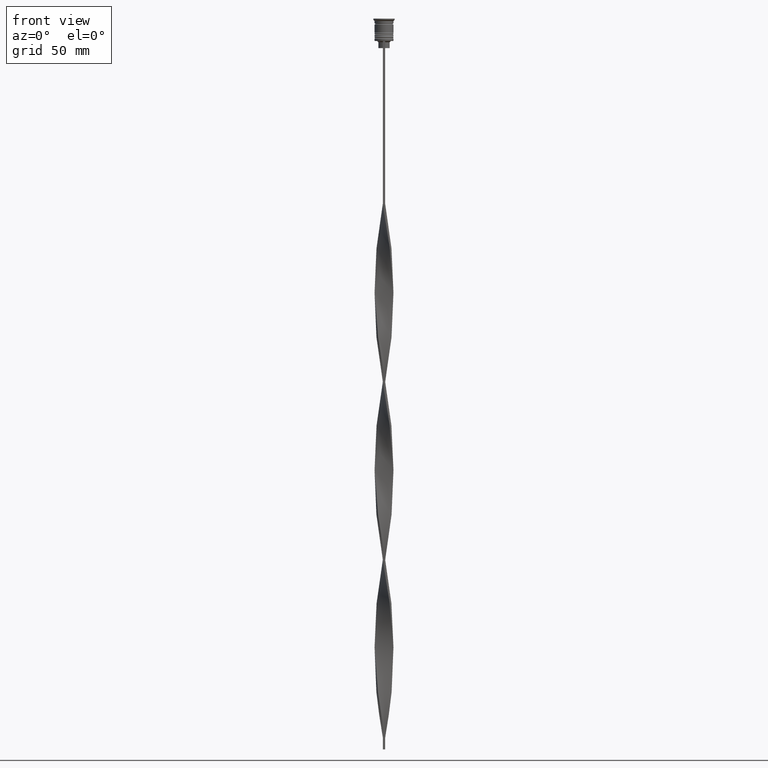
[diagram: clean part render]
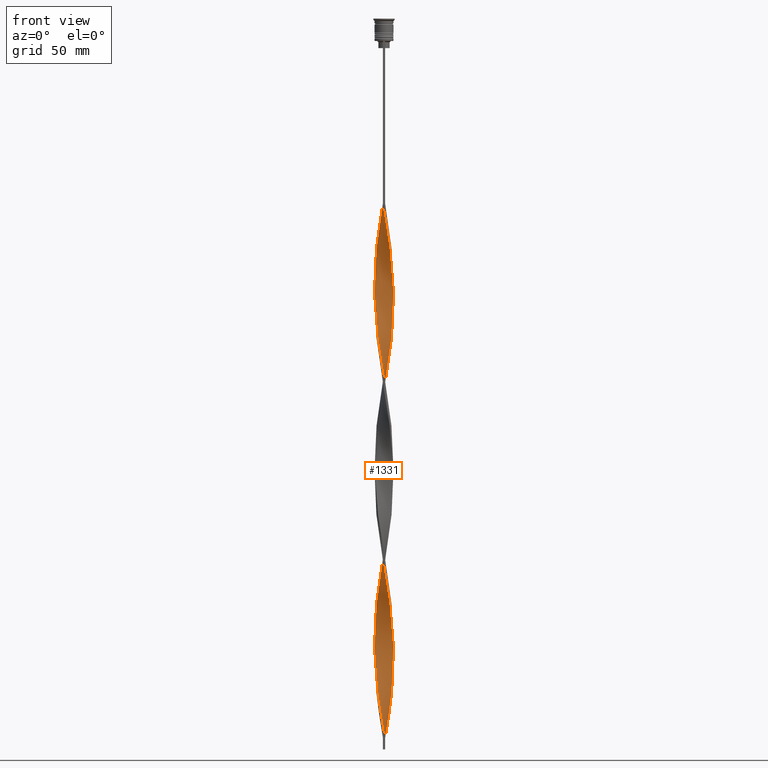
[diagram: same view with one face highlighted and labeled with its STEP entity id]
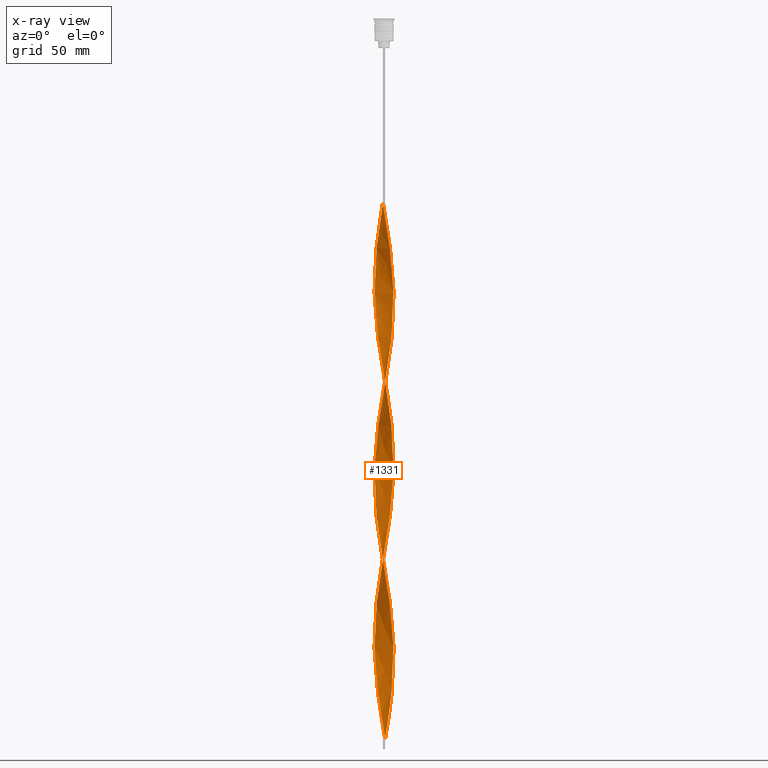
[diagram: x-ray of the same camera — body ghosted, the highlighted face saturated]
A machine part, front view. The second image highlights one B-rep face of the part: STEP entity #1331.
The next image is the same camera in x-ray: the body ghosted, the highlighted face saturated — about 0% of this face is hidden behind the body in this view.
In plain terms, the highlighted face is a freeform B-spline surface patch.
Its self-contained STEP definition (entity closure, byte-faithful):
#4 = CARTESIAN_POINT ( 'NONE',  ( 3.945048299290513150, 0.8286096283926643880, -193.4824561403508767 ) ) ;
#11 = CARTESIAN_POINT ( 'NONE',  ( 0.4999999999999994449, -4.000000000000000000, -304.5000000000000000 ) ) ;
#14 = CARTESIAN_POINT ( 'NONE',  ( -4.000343807327721102, -0.4972418155935300343, -197.4473684210526585 ) ) ;
#19 = CARTESIAN_POINT ( 'NONE',  ( 4.041546438877109182, 0.1657638771030611746, -270.7982456140350678 ) ) ;
#21 = CARTESIAN_POINT ( 'NONE',  ( -2.343526447751538733, 3.279921308307419903, -241.0614035087719174 ) ) ;
#31 = CARTESIAN_POINT ( 'NONE',  ( 3.281536428505397396, 2.341264331166397206, -284.6754385964912331 ) ) ;
#53 = CARTESIAN_POINT ( 'NONE',  ( 4.027627644762845627, -0.1679748646140058199, -268.8157894736842195 ) ) ;
#69 = CARTESIAN_POINT ( 'NONE',  ( -3.281536428505396952, 2.341264331166398982, -248.9912280701754241 ) ) ;
#85 = CARTESIAN_POINT ( 'NONE',  ( 0.1685505501969314646, -4.041431181225382474, -151.8508771929824661 ) ) ;
#90 = CARTESIAN_POINT ( 'NONE',  ( -0.1685505501969328801, -4.041431181225382474, -80.48245614035087669 ) ) ;
#102 = CARTESIAN_POINT ( 'NONE',  ( -3.075191833988901280, -2.606375871620971285, -130.0438596491227941 ) ) ;
#108 = CARTESIAN_POINT ( 'NONE',  ( 0.8258892559684165580, -3.945618701404880024, -86.42982456140350678 ) ) ;
#116 = CARTESIAN_POINT ( 'NONE',  ( -1.152832542896750301, 3.877183566532631964, -163.7456140350876979 ) ) ;
#124 = CARTESIAN_POINT ( 'NONE',  ( -3.633328892441398672, -1.777778512611467576, -124.0964912280701640 ) ) ;
#132 = CARTESIAN_POINT ( 'NONE',  ( 0.1651977094215744957, -4.027742508751256167, -82.46491228070175339 ) ) ;
#135 = CARTESIAN_POINT ( 'NONE',  ( 4.027627644762845627, -0.1679748646140058199, -118.1491228070175481 ) ) ;
#149 = CARTESIAN_POINT ( 'NONE',  ( 4.013708850648581183, 0.5017136063310719818, -191.4999999999999716 ) ) ;
#158 = CARTESIAN_POINT ( 'NONE',  ( -0.5000000000000000000, -4.000000000000000000, -78.50000000000000000 ) ) ;
#165 = CARTESIAN_POINT ( 'NONE',  ( -0.5000000000000000000, -4.000000000000000000, -78.50000000000000000 ) ) ;
#167 = CARTESIAN_POINT ( 'NONE',  ( -2.604254856879656632, -3.076988241839529348, -134.0087719298245759 ) ) ;
#174 = CARTESIAN_POINT ( 'NONE',  ( 0.1685505501969342679, 4.041431181225382474, -155.8157894736842195 ) ) ;
#185 = CARTESIAN_POINT ( 'NONE',  ( 1.152832542896753409, 3.877183566532631520, -219.2543859649122737 ) ) ;
#195 = CARTESIAN_POINT ( 'NONE',  ( -1.464052696545049548, 3.755868701344493132, -165.7280701754386030 ) ) ;
#214 = CARTESIAN_POINT ( 'NONE',  ( 2.615308476010501426, 3.085731170380873412, -139.9561403508772059 ) ) ;
#223 = CARTESIAN_POINT ( 'NONE',  ( 0.8258892559684176682, 3.945618701404880024, -221.2368421052631788 ) ) ;
#231 = CARTESIAN_POINT ( 'NONE',  ( 2.071744419492577371, 3.474111446233965061, -294.5877192982455881 ) ) ;
#233 = CARTESIAN_POINT ( 'NONE',  ( -4.027627644762845627, 0.1679748646140054313, -193.4824561403508767 ) ) ;
#235 = CARTESIAN_POINT ( 'NONE',  ( -2.343526447751538733, 3.279921308307419903, -90.39473684210526017 ) ) ;
#241 = CARTESIAN_POINT ( 'NONE',  ( -3.863941018946714490, 1.148895035284349442, -256.9210526315789593 ) ) ;
#244 = EDGE_CURVE ( 'NONE', #1855, #1243, #804, .T. ) ;
#250 = CARTESIAN_POINT ( 'NONE',  ( -2.343526447751540953, -3.279921308307418126, -217.2719298245613970 ) ) ;
#254 = CARTESIAN_POINT ( 'NONE',  ( -4.013708850648581183, -0.5017136063310724259, -116.1666666666666714 ) ) ;
#279 = CARTESIAN_POINT ( 'NONE',  ( 0.1685505501969314646, -4.041431181225382474, -151.8508771929824661 ) ) ;
#293 = CARTESIAN_POINT ( 'NONE',  ( 4.013708850648581183, -0.5017136063310728700, -266.8333333333333712 ) ) ;
#295 = CARTESIAN_POINT ( 'NONE',  ( -3.622139992111327533, 1.769209393358443627, -102.2894736842105203 ) ) ;
#312 = CARTESIAN_POINT ( 'NONE',  ( 3.281536428505396064, -2.341264331166400314, -173.6578947368421098 ) ) ;
#324 = CARTESIAN_POINT ( 'NONE',  ( 2.604254856879656188, -3.076988241839530236, -248.9912280701754241 ) ) ;
#333 = CARTESIAN_POINT ( 'NONE',  ( 2.859221371831710545, -2.861193531974598692, -250.9736842105263008 ) ) ;
#336 = CARTESIAN_POINT ( 'NONE',  ( -2.615308476010500982, 3.085731170380873412, -243.0438596491228509 ) ) ;
#345 = CARTESIAN_POINT ( 'NONE',  ( -3.945048299290513150, 0.8286096283926659423, -189.5175438596491517 ) ) ;
#353 = CARTESIAN_POINT ( 'NONE',  ( 0.4989459690400814829, -4.014053836277128973, -235.1140350877193441 ) ) ;
#355 = CARTESIAN_POINT ( 'NONE',  ( -1.775272850193347685, -3.634553836156354745, -290.6228070175438347 ) ) ;
#365 = CARTESIAN_POINT ( 'NONE',  ( 2.851421105456868776, 2.849455681240740113, -288.6403508771929864 ) ) ;
#372 = CARTESIAN_POINT ( 'NONE',  ( 0.5000000000000005551, 4.000000000000000000, -153.8333333333333144 ) ) ;
#374 = CARTESIAN_POINT ( 'NONE',  ( -2.062280596060475091, -3.463668393930408040, -288.6403508771929864 ) ) ;
#386 = CARTESIAN_POINT ( 'NONE',  ( 3.876387747932445560, 1.155505650454253574, -195.4649122807017534 ) ) ;
#400 = CARTESIAN_POINT ( 'NONE',  ( 0.5000000000000005551, 4.000000000000000000, -304.5000000000000000 ) ) ;
#414 = CARTESIAN_POINT ( 'NONE',  ( -4.041546438877107406, 0.1657638771030618408, -112.2017543859649180 ) ) ;
#421 = CARTESIAN_POINT ( 'NONE',  ( -3.876387747932445116, -1.155505650454255573, -270.7982456140350678 ) ) ;
#435 = CARTESIAN_POINT ( 'NONE',  ( -3.087533734903234350, 2.613180192100606813, -96.34210526315787604 ) ) ;
#450 = CARTESIAN_POINT ( 'NONE',  ( -3.291162296146090682, -2.351558211267345211, -128.0614035087719458 ) ) ;
#457 = CARTESIAN_POINT ( 'NONE',  ( 3.754858320186921894, -1.466642081532862241, -110.2192982456140413 ) ) ;
#472 = CARTESIAN_POINT ( 'NONE',  ( -0.5000000000000000000, 4.000000000000000000, -78.50000000000000000 ) ) ;
#479 = CARTESIAN_POINT ( 'NONE',  ( 2.343526447751539177, 3.279921308307419459, -141.9385964912280826 ) ) ;
#481 = CARTESIAN_POINT ( 'NONE',  ( -4.000343807327721102, -0.4972418155935300343, -197.4473684210526585 ) ) ;
#489 = CARTESIAN_POINT ( 'NONE',  ( -3.754858320186921894, -1.466642081532861797, -272.7807017543859729 ) ) ;
#496 = CARTESIAN_POINT ( 'NONE',  ( -0.1685505501969329079, -4.041431181225382474, -80.48245614035087669 ) ) ;
#506 = CARTESIAN_POINT ( 'NONE',  ( -3.876387747932445116, -1.155505650454255795, -270.7982456140351246 ) ) ;
#514 = CARTESIAN_POINT ( 'NONE',  ( 3.863941018946714934, 1.148895035284348332, -126.0789473684210691 ) ) ;
#526 = CARTESIAN_POINT ( 'NONE',  ( -0.1651977094215750508, -4.027742508751256167, -300.5350877192982466 ) ) ;
#535 = CARTESIAN_POINT ( 'NONE',  ( 0.1651977094215744957, -4.027742508751256167, -233.1315789473684106 ) ) ;
#537 = CARTESIAN_POINT ( 'NONE',  ( -3.291162296146088906, 2.351558211267347431, -179.6052631578947398 ) ) ;
#546 = CARTESIAN_POINT ( 'NONE',  ( 0.4999999999999994449, -4.000000000000000000, -304.5000000000000000 ) ) ;
#551 = CARTESIAN_POINT ( 'NONE',  ( -4.041546438877108294, -0.1657638771030589819, -195.4649122807017534 ) ) ;
#554 = CARTESIAN_POINT ( 'NONE',  ( -3.959141175778333022, -0.8287197540840007814, -199.4298245614035068 ) ) ;
#556 = CARTESIAN_POINT ( 'NONE',  ( -3.475539122107559553, 2.069348470232189374, -100.3070175438596294 ) ) ;
#563 = CARTESIAN_POINT ( 'NONE',  ( -0.8314494498030671199, 3.958568818774615750, -231.1491228070175623 ) ) ;
#572 = CARTESIAN_POINT ( 'NONE',  ( 0.8314494498030685632, 3.958568818774615750, -302.5175438596491517 ) ) ;
#575 = CARTESIAN_POINT ( 'NONE',  ( -4.027627644762845627, -0.1679748646140053203, -114.1842105263157947 ) ) ;
#596 = CARTESIAN_POINT ( 'NONE',  ( 2.071744419492575151, -3.474111446233965950, -163.7456140350876979 ) ) ;
#611 = CARTESIAN_POINT ( 'NONE',  ( 1.775272850193347685, -3.634553836156354745, -243.0438596491228509 ) ) ;
#612 = CARTESIAN_POINT ( 'NONE',  ( -2.071744419492576039, 3.474111446233965506, -88.41228070175438347 ) ) ;
#625 = CARTESIAN_POINT ( 'NONE',  ( 2.349288341927600499, -3.292782951704461780, -247.0087719298245190 ) ) ;
#630 = CARTESIAN_POINT ( 'NONE',  ( -3.959141175778332133, 0.8287197540840016696, -108.2368421052631646 ) ) ;
#634 = ORIENTED_EDGE ( 'NONE', *, *, #244, .F. ) ;
#644 = CARTESIAN_POINT ( 'NONE',  ( 3.622139992111327977, 1.769209393358442517, -280.7105263157894797 ) ) ;
#655 = CARTESIAN_POINT ( 'NONE',  ( 1.771706497669051972, 3.620919232200196625, -296.5701754385964932 ) ) ;
#669 = CARTESIAN_POINT ( 'NONE',  ( 1.152832542896750967, -3.877183566532631520, -239.0789473684210407 ) ) ;
#679 = CARTESIAN_POINT ( 'NONE',  ( 0.8258892559684176682, 3.945618701404880024, -221.2368421052631788 ) ) ;
#684 = ORIENTED_EDGE ( 'NONE', *, *, #2392, .F. ) ;
#693 = CARTESIAN_POINT ( 'NONE',  ( 3.945048299290513150, 0.8286096283926643880, -193.4824561403508767 ) ) ;
#714 = CARTESIAN_POINT ( 'NONE',  ( 0.5000000000000005551, 4.000000000000000000, -304.5000000000000000 ) ) ;
#726 = CARTESIAN_POINT ( 'NONE',  ( 4.000343807327721102, 0.4972418155935313666, -122.1140350877193015 ) ) ;
#729 = CARTESIAN_POINT ( 'NONE',  ( -0.1651977094215750508, -4.027742508751256167, -300.5350877192982466 ) ) ;
#742 = CARTESIAN_POINT ( 'NONE',  ( 3.475539122107559553, -2.069348470232190706, -175.6403508771930149 ) ) ;
#746 = CARTESIAN_POINT ( 'NONE',  ( 4.041546438877109182, 0.1657638771030611746, -120.1315789473684106 ) ) ;
#750 = CARTESIAN_POINT ( 'NONE',  ( 1.464052696545052212, 3.755868701344492244, -217.2719298245613970 ) ) ;
#764 = CARTESIAN_POINT ( 'NONE',  ( 3.959141175778333022, -0.8287197540840020027, -183.5701754385964364 ) ) ;
#771 = CARTESIAN_POINT ( 'NONE',  ( 2.062280596060474647, -3.463668393930408484, -94.35964912280701355 ) ) ;
#773 = CARTESIAN_POINT ( 'NONE',  ( 3.622139992111327977, 1.769209393358442517, -130.0438596491227941 ) ) ;
#782 = CARTESIAN_POINT ( 'NONE',  ( -3.475539122107559997, 2.069348470232189818, -100.3070175438596294 ) ) ;
#804 =( BOUNDED_CURVE ( )  B_SPLINE_CURVE ( 2, ( #1625, #90, #132, #1386, #108, #1695, #2641, #2981, #771, #2292, #2618, #2554, #3892, #2917, #3917, #1089, #457, #2270, #1344, #3599, #1650, #746, #726, #1984, #3536, #1671, #3512, #1940, #2934, #1364, #2316, #1066, #3203, #3288, #1721, #2002, #3828, #2891, #372, #3986, #2356, #1679, #1077, #116, #195, #4004, #870, #2051, #2705, #1147, #2397, #537, #3314, #3348, #2434, #3385, #1503, #1466, #233, #1178, #481, #554, #1810, #1743, #1484, #3077, #1424, #2680, #2741, #2765, #3953, #1127, #2378, #3644, #2807, #2514, #3720, #935, #1917, #353, #1893, #4065, #1219, #611, #2138, #3156, #2496, #333, #1586, #2848, #1236, #1563, #3406, #1873, #909, #293, #1543, #19, #1274, #2532, #3801, #970, #954, #3099, #2160, #2223, #3489, #3763, #2185, #4045, #655, #1604, #3449, #572, #2869 ),
 .UNSPECIFIED., .F., .T. ) 
 B_SPLINE_CURVE_WITH_KNOTS ( ( 3, 2, 2, 2, 2, 2, 2, 2, 2, 2, 2, 2, 2, 2, 2, 2, 2, 2, 2, 2, 2, 2, 2, 2, 2, 2, 2, 2, 2, 2, 2, 2, 2, 2, 2, 2, 2, 2, 2, 2, 2, 2, 2, 2, 2, 2, 2, 2, 2, 2, 2, 2, 2, 2, 2, 2, 2, 3 ),
 ( 0.000000000000000000, 0.01315789473684210453, 0.02631578947368420907, 0.03947368421052631360, 0.05263157894736841813, 0.06578947368421052266, 0.07894736842105262720, 0.09210526315789473173, 0.1052631578947368363, 0.1184210526315789408, 0.1315789473684210453, 0.1447368421052631637, 0.1578947368421052544, 0.1710526315789473728, 0.1842105263157894635, 0.1973684210526315541, 0.2105263157894736725, 0.2236842105263157909, 0.2368421052631578816, 0.2500000000000000000, 0.2631578947368420907, 0.2763157894736842368, 0.2894736842105263275, 0.3026315789473684181, 0.3157894736842105088, 0.3289473684210526550, 0.3421052631578947456, 0.3552631578947368918, 0.3684210526315789269, 0.3815789473684210731, 0.3947368421052631082, 0.4078947368421052544, 0.4210526315789473450, 0.4342105263157895467, 0.4473684210526315819, 0.4605263157894736725, 0.4736842105263157632, 0.4868421052631579093, 0.5000000000000000000, 0.5131578947368421462, 0.5263157894736841813, 0.5394736842105263275, 0.5526315789473684736, 0.5657894736842105088, 0.5789473684210526550, 0.5921052631578946901, 0.6052631578947368363, 0.6184210526315789824, 0.6315789473684210176, 0.6447368421052631637, 0.6578947368421053099, 0.6710526315789473450, 0.6842105263157894912, 0.6973684210526315264, 0.7105263157894737835, 0.7236842105263158187, 0.7368421052631578538, 0.7500000000000000000 ),
 .UNSPECIFIED. ) 
 CURVE ( )  GEOMETRIC_REPRESENTATION_ITEM ( )  RATIONAL_B_SPLINE_CURVE ( ( 1.000000000000000000, 0.9965844930066698470, 1.000000000000000000, 0.9965844930066698470, 1.000000000000000000, 0.9965844930066698470, 1.000000000000000000, 0.9965844930066698470, 1.000000000000000000, 0.9965844930066698470, 1.000000000000000000, 0.9965844930066698470, 1.000000000000000000, 0.9965844930066698470, 1.000000000000000000, 0.9965844930066698470, 1.000000000000000000, 0.9965844930066698470, 1.000000000000000000, 0.9965844930066698470, 1.000000000000000000, 0.9965844930066698470, 1.000000000000000000, 0.9965844930066698470, 1.000000000000000000, 0.9965844930066698470, 1.000000000000000000, 0.9965844930066698470, 1.000000000000000000, 0.9965844930066698470, 1.000000000000000000, 0.9965844930066698470, 1.000000000000000000, 0.9965844930066698470, 1.000000000000000000, 0.9965844930066698470, 1.000000000000000000, 0.9965844930066698470, 1.000000000000000000, 0.9965844930066698470, 1.000000000000000000, 0.9965844930066698470, 1.000000000000000000, 0.9965844930066698470, 1.000000000000000000, 0.9965844930066698470, 1.000000000000000000, 0.9965844930066698470, 1.000000000000000000, 0.9965844930066698470, 1.000000000000000000, 0.9965844930066698470, 1.000000000000000000, 0.9965844930066698470, 1.000000000000000000, 0.9965844930066698470, 1.000000000000000000, 0.9965844930066698470, 1.000000000000000000, 0.9965844930066698470, 1.000000000000000000, 0.9965844930066698470, 1.000000000000000000, 0.9965844930066698470, 1.000000000000000000, 0.9965844930066698470, 1.000000000000000000, 0.9965844930066698470, 1.000000000000000000, 0.9965844930066698470, 1.000000000000000000, 0.9965844930066698470, 1.000000000000000000, 0.9965844930066698470, 1.000000000000000000, 0.9965844930066698470, 1.000000000000000000, 0.9965844930066698470, 1.000000000000000000, 0.9965844930066698470, 1.000000000000000000, 0.9965844930066698470, 1.000000000000000000, 0.9965844930066698470, 1.000000000000000000, 0.9965844930066698470, 1.000000000000000000, 0.9965844930066698470, 1.000000000000000000, 0.9965844930066698470, 1.000000000000000000, 0.9965844930066698470, 1.000000000000000000, 0.9965844930066698470, 1.000000000000000000, 0.9965844930066698470, 1.000000000000000000, 0.9965844930066698470, 1.000000000000000000, 0.9965844930066698470, 1.000000000000000000, 0.9965844930066698470, 1.000000000000000000, 0.9965844930066698470, 1.000000000000000000, 0.9965844930066698470, 1.000000000000000000, 0.9965844930066698470, 1.000000000000000000, 0.9965844930066698470, 1.000000000000000000, 0.9965844930066698470, 1.000000000000000000, 0.9965844930066698470, 1.000000000000000000 ) ) 
 REPRESENTATION_ITEM ( '' )  );
#806 = CARTESIAN_POINT ( 'NONE',  ( -2.071744419492575595, 3.474111446233965506, -239.0789473684210407 ) ) ;
#814 = CARTESIAN_POINT ( 'NONE',  ( 3.291162296146090682, -2.351558211267345211, -104.2719298245614112 ) ) ;
#823 = CARTESIAN_POINT ( 'NONE',  ( -4.013708850648581183, -0.5017136063310724259, -266.8333333333333712 ) ) ;
#832 = CARTESIAN_POINT ( 'NONE',  ( 2.859221371831710989, -2.861193531974598692, -100.3070175438596294 ) ) ;
#839 = CARTESIAN_POINT ( 'NONE',  ( -3.462245594293745565, -2.064668361939405727, -276.7456140350877263 ) ) ;
#845 = CARTESIAN_POINT ( 'NONE',  ( 3.863941018946714934, 1.148895035284348332, -276.7456140350877263 ) ) ;
#860 = CARTESIAN_POINT ( 'NONE',  ( -3.291162296146090682, -2.351558211267345211, -278.7280701754385177 ) ) ;
#868 = CARTESIAN_POINT ( 'NONE',  ( -3.087533734903235683, -2.613180192100605037, -211.3245614035087385 ) ) ;
#870 = CARTESIAN_POINT ( 'NONE',  ( -2.062280596060474647, 3.463668393930408929, -169.6929824561403279 ) ) ;
#873 = CARTESIAN_POINT ( 'NONE',  ( 1.151559012824296291, -3.863147918470523301, -157.7982456140350962 ) ) ;
#882 = CARTESIAN_POINT ( 'NONE',  ( -2.851421105456868332, 2.849455681240740557, -245.0263157894736992 ) ) ;
#893 = CARTESIAN_POINT ( 'NONE',  ( -0.8258892559684172241, -3.945618701404880024, -145.9035087719298076 ) ) ;
#909 = CARTESIAN_POINT ( 'NONE',  ( 3.945048299290513150, -0.8286096283926643880, -264.8508771929824661 ) ) ;
#912 = CARTESIAN_POINT ( 'NONE',  ( 2.859221371831710989, 2.861193531974598248, -207.3596491228070136 ) ) ;
#933 =( BOUNDED_SURFACE ( )  B_SPLINE_SURFACE ( 1, 2, ( 
 ( #158, #496, #2375, #1463, #1722, #2702, #3642, #1699, #2644, #2337, #2048, #832, #2081, #814, #1145, #3973, #2956, #2721, #3003, #3019, #135, #2395, #3618, #3344, #514, #1162, #773, #3312, #3039, #2354, #3934, #214, #479, #1422, #2025, #1741, #1389, #3918, #2678, #174, #3988, #2068, #1091, #2413, #3601, #2984, #1407, #2660, #1106, #3462, #1888, #3697, #2882, #3797, #2841, #947, #345, #3175, #1286, #551, #14, #1808, #3075, #2244, #2547, #4026, #1931, #868, #1267, #3507, #250, #3816, #988, #2574, #2117, #1500, #3776, #2525, #535, #3383, #2199, #669, #1198, #2759, #1598, #625, #324, #2453, #3149, #1793, #1482, #1579, #966, #1910, #2217, #2739, #53, #3195, #3481, #3058, #845, #1309, #644, #2859, #31, #2098, #365, #1617, #3367, #231, #4002, #1175, #2428, #1688, #714 ),
 ( #472, #1056, #1417, #1377, #1400, #3242, #2305, #1101, #2264, #435, #2286, #782, #1997, #2348, #3549, #2947, #1974, #414, #1337, #2593, #1038, #3613, #2652, #124, #3263, #450, #102, #3527, #167, #1666, #1710, #2929, #2609, #2035, #2631, #1356, #1953, #85, #3868, #3301, #1733, #2019, #2993, #3885, #3847, #3218, #1084, #3574, #3910, #742, #2330, #3594, #3927, #764, #1017, #3283, #2969, #149, #693, #386, #1640, #2912, #2712, #3687, #2730, #3322, #2386, #3050, #2750, #3981, #2405, #185, #223, #3996, #1154, #3944, #1790, #563, #1820, #3670, #3339, #806, #1116, #3631, #882, #2129, #3964, #3031, #2364, #3013, #241, #1170, #1492, #1137, #3652, #823, #3087, #506, #489, #3710, #839, #860, #2420, #1750, #2076, #1473, #4015, #2090, #3357, #1433, #2112, #3378, #526, #2059, #546 ) ),
 .UNSPECIFIED., .F., .F., .F. ) 
 B_SPLINE_SURFACE_WITH_KNOTS ( ( 2, 2 ),
 ( 3, 2, 2, 2, 2, 2, 2, 2, 2, 2, 2, 2, 2, 2, 2, 2, 2, 2, 2, 2, 2, 2, 2, 2, 2, 2, 2, 2, 2, 2, 2, 2, 2, 2, 2, 2, 2, 2, 2, 2, 2, 2, 2, 2, 2, 2, 2, 2, 2, 2, 2, 2, 2, 2, 2, 2, 2, 3 ),
 ( 0.000000000000000000, 1.000000000000000000 ),
 ( 0.000000000000000000, 0.01315789473684210453, 0.02631578947368420907, 0.03947368421052631360, 0.05263157894736841813, 0.06578947368421052266, 0.07894736842105262720, 0.09210526315789473173, 0.1052631578947368363, 0.1184210526315789408, 0.1315789473684210453, 0.1447368421052631637, 0.1578947368421052544, 0.1710526315789473728, 0.1842105263157894635, 0.1973684210526315819, 0.2105263157894736725, 0.2236842105263157909, 0.2368421052631578816, 0.2500000000000000000, 0.2631578947368420907, 0.2763157894736842368, 0.2894736842105263275, 0.3026315789473684181, 0.3157894736842105088, 0.3289473684210526550, 0.3421052631578947456, 0.3552631578947368363, 0.3684210526315789269, 0.3815789473684210731, 0.3947368421052631637, 0.4078947368421052544, 0.4210526315789473450, 0.4342105263157894912, 0.4473684210526315819, 0.4605263157894736725, 0.4736842105263157632, 0.4868421052631579093, 0.5000000000000000000, 0.5131578947368421462, 0.5263157894736841813, 0.5394736842105263275, 0.5526315789473684736, 0.5657894736842105088, 0.5789473684210526550, 0.5921052631578946901, 0.6052631578947368363, 0.6184210526315789824, 0.6315789473684210176, 0.6447368421052631637, 0.6578947368421053099, 0.6710526315789473450, 0.6842105263157894912, 0.6973684210526315264, 0.7105263157894736725, 0.7236842105263158187, 0.7368421052631578538, 0.7500000000000000000 ),
 .UNSPECIFIED. ) 
 GEOMETRIC_REPRESENTATION_ITEM ( )  RATIONAL_B_SPLINE_SURFACE ( (
 ( 1.000000000000000000, 0.9965844930066698470, 1.000000000000000000, 0.9965844930066698470, 1.000000000000000000, 0.9965844930066698470, 1.000000000000000000, 0.9965844930066698470, 1.000000000000000000, 0.9965844930066698470, 1.000000000000000000, 0.9965844930066698470, 1.000000000000000000, 0.9965844930066698470, 1.000000000000000000, 0.9965844930066698470, 1.000000000000000000, 0.9965844930066698470, 1.000000000000000000, 0.9965844930066698470, 1.000000000000000000, 0.9965844930066698470, 1.000000000000000000, 0.9965844930066698470, 1.000000000000000000, 0.9965844930066698470, 1.000000000000000000, 0.9965844930066698470, 1.000000000000000000, 0.9965844930066698470, 1.000000000000000000, 0.9965844930066698470, 1.000000000000000000, 0.9965844930066698470, 1.000000000000000000, 0.9965844930066698470, 1.000000000000000000, 0.9965844930066698470, 1.000000000000000000, 0.9965844930066698470, 1.000000000000000000, 0.9965844930066698470, 1.000000000000000000, 0.9965844930066698470, 1.000000000000000000, 0.9965844930066698470, 1.000000000000000000, 0.9965844930066698470, 1.000000000000000000, 0.9965844930066698470, 1.000000000000000000, 0.9965844930066698470, 1.000000000000000000, 0.9965844930066698470, 1.000000000000000000, 0.9965844930066698470, 1.000000000000000000, 0.9965844930066698470, 1.000000000000000000, 0.9965844930066698470, 1.000000000000000000, 0.9965844930066698470, 1.000000000000000000, 0.9965844930066698470, 1.000000000000000000, 0.9965844930066698470, 1.000000000000000000, 0.9965844930066698470, 1.000000000000000000, 0.9965844930066698470, 1.000000000000000000, 0.9965844930066698470, 1.000000000000000000, 0.9965844930066698470, 1.000000000000000000, 0.9965844930066698470, 1.000000000000000000, 0.9965844930066698470, 1.000000000000000000, 0.9965844930066698470, 1.000000000000000000, 0.9965844930066698470, 1.000000000000000000, 0.9965844930066698470, 1.000000000000000000, 0.9965844930066698470, 1.000000000000000000, 0.9965844930066698470, 1.000000000000000000, 0.9965844930066698470, 1.000000000000000000, 0.9965844930066698470, 1.000000000000000000, 0.9965844930066698470, 1.000000000000000000, 0.9965844930066698470, 1.000000000000000000, 0.9965844930066698470, 1.000000000000000000, 0.9965844930066698470, 1.000000000000000000, 0.9965844930066698470, 1.000000000000000000, 0.9965844930066698470, 1.000000000000000000, 0.9965844930066698470, 1.000000000000000000, 0.9965844930066698470, 1.000000000000000000, 0.9965844930066698470, 1.000000000000000000, 0.9965844930066698470, 1.000000000000000000, 0.9965844930066698470, 1.000000000000000000),
 ( 1.000000000000000000, 0.9965844930066698470, 1.000000000000000000, 0.9965844930066698470, 1.000000000000000000, 0.9965844930066698470, 1.000000000000000000, 0.9965844930066698470, 1.000000000000000000, 0.9965844930066698470, 1.000000000000000000, 0.9965844930066698470, 1.000000000000000000, 0.9965844930066698470, 1.000000000000000000, 0.9965844930066698470, 1.000000000000000000, 0.9965844930066698470, 1.000000000000000000, 0.9965844930066698470, 1.000000000000000000, 0.9965844930066698470, 1.000000000000000000, 0.9965844930066698470, 1.000000000000000000, 0.9965844930066698470, 1.000000000000000000, 0.9965844930066698470, 1.000000000000000000, 0.9965844930066698470, 1.000000000000000000, 0.9965844930066698470, 1.000000000000000000, 0.9965844930066698470, 1.000000000000000000, 0.9965844930066698470, 1.000000000000000000, 0.9965844930066698470, 1.000000000000000000, 0.9965844930066698470, 1.000000000000000000, 0.9965844930066698470, 1.000000000000000000, 0.9965844930066698470, 1.000000000000000000, 0.9965844930066698470, 1.000000000000000000, 0.9965844930066698470, 1.000000000000000000, 0.9965844930066698470, 1.000000000000000000, 0.9965844930066698470, 1.000000000000000000, 0.9965844930066698470, 1.000000000000000000, 0.9965844930066698470, 1.000000000000000000, 0.9965844930066698470, 1.000000000000000000, 0.9965844930066698470, 1.000000000000000000, 0.9965844930066698470, 1.000000000000000000, 0.9965844930066698470, 1.000000000000000000, 0.9965844930066698470, 1.000000000000000000, 0.9965844930066698470, 1.000000000000000000, 0.9965844930066698470, 1.000000000000000000, 0.9965844930066698470, 1.000000000000000000, 0.9965844930066698470, 1.000000000000000000, 0.9965844930066698470, 1.000000000000000000, 0.9965844930066698470, 1.000000000000000000, 0.9965844930066698470, 1.000000000000000000, 0.9965844930066698470, 1.000000000000000000, 0.9965844930066698470, 1.000000000000000000, 0.9965844930066698470, 1.000000000000000000, 0.9965844930066698470, 1.000000000000000000, 0.9965844930066698470, 1.000000000000000000, 0.9965844930066698470, 1.000000000000000000, 0.9965844930066698470, 1.000000000000000000, 0.9965844930066698470, 1.000000000000000000, 0.9965844930066698470, 1.000000000000000000, 0.9965844930066698470, 1.000000000000000000, 0.9965844930066698470, 1.000000000000000000, 0.9965844930066698470, 1.000000000000000000, 0.9965844930066698470, 1.000000000000000000, 0.9965844930066698470, 1.000000000000000000, 0.9965844930066698470, 1.000000000000000000, 0.9965844930066698470, 1.000000000000000000, 0.9965844930066698470, 1.000000000000000000) ) ) 
 REPRESENTATION_ITEM ( '' )  SURFACE ( )  );
#935 = CARTESIAN_POINT ( 'NONE',  ( -0.1685505501969328801, -4.041431181225382474, -231.1491228070175623 ) ) ;
#937 = CARTESIAN_POINT ( 'NONE',  ( 4.027627644762845627, 0.1679748646140039048, -189.5175438596491517 ) ) ;
#947 = CARTESIAN_POINT ( 'NONE',  ( -3.876387747932443784, 1.155505650454258459, -187.5350877192982750 ) ) ;
#954 = CARTESIAN_POINT ( 'NONE',  ( 3.622139992111327977, 1.769209393358442517, -280.7105263157894797 ) ) ;
#956 = CARTESIAN_POINT ( 'NONE',  ( 3.754858320186922338, 1.466642081532860464, -197.4473684210526585 ) ) ;
#966 = CARTESIAN_POINT ( 'NONE',  ( 3.754858320186921894, -1.466642081532862241, -260.8859649122807127 ) ) ;
#970 = CARTESIAN_POINT ( 'NONE',  ( 3.768740862115096402, 1.469070316484696548, -278.7280701754385746 ) ) ;
#988 = CARTESIAN_POINT ( 'NONE',  ( -1.771706497669052194, -3.620919232200196181, -221.2368421052631788 ) ) ;
#1017 = CARTESIAN_POINT ( 'NONE',  ( 4.000343807327721102, -0.4972418155935313666, -185.5526315789473699 ) ) ;
#1026 = CARTESIAN_POINT ( 'NONE',  ( -3.863941018946714490, 1.148895035284349442, -256.9210526315789593 ) ) ;
#1038 = CARTESIAN_POINT ( 'NONE',  ( -3.945048299290513150, -0.8286096283926639439, -118.1491228070175481 ) ) ;
#1047 = CARTESIAN_POINT ( 'NONE',  ( 0.1651977094215772157, 4.027742508751256167, -225.2017543859649038 ) ) ;
#1056 = CARTESIAN_POINT ( 'NONE',  ( -0.8314494498030671199, 3.958568818774615750, -80.48245614035087669 ) ) ;
#1066 = CARTESIAN_POINT ( 'NONE',  ( 2.615308476010500982, 3.085731170380873412, -139.9561403508772059 ) ) ;
#1069 = CARTESIAN_POINT ( 'NONE',  ( -2.851421105456868332, 2.849455681240740557, -245.0263157894736992 ) ) ;
#1077 = CARTESIAN_POINT ( 'NONE',  ( -0.8258892559684163359, 3.945618701404880913, -161.7631578947368212 ) ) ;
#1084 = CARTESIAN_POINT ( 'NONE',  ( 2.851421105456868332, -2.849455681240740557, -169.6929824561403279 ) ) ;
#1089 = CARTESIAN_POINT ( 'NONE',  ( 3.633328892441399116, -1.777778512611468020, -108.2368421052631646 ) ) ;
#1091 = CARTESIAN_POINT ( 'NONE',  ( -0.8258892559684163359, 3.945618701404880913, -161.7631578947368212 ) ) ;
#1093 = CARTESIAN_POINT ( 'NONE',  ( 0.5000000000000002220, 1.333333333333333481, -304.5000000000000000 ) ) ;
#1101 = CARTESIAN_POINT ( 'NONE',  ( -2.615308476010501426, 3.085731170380873412, -92.37719298245615107 ) ) ;
#1106 = CARTESIAN_POINT ( 'NONE',  ( -2.604254856879654412, 3.076988241839531568, -173.6578947368421098 ) ) ;
#1116 = CARTESIAN_POINT ( 'NONE',  ( -2.343526447751538733, 3.279921308307419903, -241.0614035087719174 ) ) ;
#1127 = CARTESIAN_POINT ( 'NONE',  ( -2.071744419492578260, -3.474111446233964617, -219.2543859649122737 ) ) ;
#1131 = CARTESIAN_POINT ( 'NONE',  ( -0.5000000000000000000, 4.000000000000000000, -78.50000000000000000 ) ) ;
#1137 = CARTESIAN_POINT ( 'NONE',  ( -4.041546438877107406, 0.1657638771030618408, -262.8684210526315042 ) ) ;
#1145 = CARTESIAN_POINT ( 'NONE',  ( 3.462245594293745121, -2.064668361939406616, -106.2543859649122879 ) ) ;
#1147 = CARTESIAN_POINT ( 'NONE',  ( -2.859221371831710101, 2.861193531974599580, -175.6403508771929864 ) ) ;
#1154 = CARTESIAN_POINT ( 'NONE',  ( 0.1651977094215772157, 4.027742508751256167, -225.2017543859649038 ) ) ;
#1156 = EDGE_CURVE ( 'NONE', #1855, #3392, #2104, .T. ) ;
#1162 = CARTESIAN_POINT ( 'NONE',  ( 3.768740862115096402, 1.469070316484696548, -128.0614035087719458 ) ) ;
#1170 = CARTESIAN_POINT ( 'NONE',  ( -3.959141175778332133, 0.8287197540840015586, -258.9035087719299213 ) ) ;
#1175 = CARTESIAN_POINT ( 'NONE',  ( 1.471668575845527682, 3.767727018166428188, -298.5526315789473983 ) ) ;
#1178 = CARTESIAN_POINT ( 'NONE',  ( -4.041546438877109182, -0.1657638771030590097, -195.4649122807017534 ) ) ;
#1182 = CARTESIAN_POINT ( 'NONE',  ( 4.013708850648581183, 0.5017136063310718708, -191.4999999999999716 ) ) ;
#1198 = CARTESIAN_POINT ( 'NONE',  ( 1.464052696545049548, -3.755868701344493132, -241.0614035087719174 ) ) ;
#1201 = CARTESIAN_POINT ( 'NONE',  ( -1.464052696545050436, -3.755868701344492688, -141.9385964912280826 ) ) ;
#1203 = EDGE_CURVE ( 'NONE', #3392, #1569, #3777, .T. ) ;
#1219 = CARTESIAN_POINT ( 'NONE',  ( 1.464052696545049548, -3.755868701344493132, -241.0614035087719174 ) ) ;
#1221 = CARTESIAN_POINT ( 'NONE',  ( 4.041546438877108294, -0.1657638771030640612, -187.5350877192982466 ) ) ;
#1236 = CARTESIAN_POINT ( 'NONE',  ( 3.462245594293745121, -2.064668361939406616, -256.9210526315789593 ) ) ;
#1237 = CARTESIAN_POINT ( 'NONE',  ( 0.4999999999999994449, -4.000000000000000000, -153.8333333333333144 ) ) ;
#1243 = VERTEX_POINT ( 'NONE', #400 ) ;
#1259 = CARTESIAN_POINT ( 'NONE',  ( -0.1651977094215750508, -4.027742508751256167, -149.8684210526315894 ) ) ;
#1267 = CARTESIAN_POINT ( 'NONE',  ( -2.851421105456868776, -2.849455681240739668, -213.3070175438596721 ) ) ;
#1274 = CARTESIAN_POINT ( 'NONE',  ( 4.000343807327721102, 0.4972418155935313666, -272.7807017543859729 ) ) ;
#1276 = CARTESIAN_POINT ( 'NONE',  ( -3.462245594293745565, -2.064668361939405727, -276.7456140350877263 ) ) ;
#1286 = CARTESIAN_POINT ( 'NONE',  ( -4.027627644762845627, 0.1679748646140054313, -193.4824561403508767 ) ) ;
#1309 = CARTESIAN_POINT ( 'NONE',  ( 3.768740862115096402, 1.469070316484696548, -278.7280701754385177 ) ) ;
#1323 = CARTESIAN_POINT ( 'NONE',  ( -0.5000000000000000000, 4.000000000000000000, -229.1666666666666856 ) ) ;
#1331 = ADVANCED_FACE ( 'NONE', ( #2005 ), #933, .T. ) ;
#1337 = CARTESIAN_POINT ( 'NONE',  ( -4.027627644762845627, -0.1679748646140053203, -114.1842105263157947 ) ) ;
#1344 = CARTESIAN_POINT ( 'NONE',  ( 3.945048299290513150, -0.8286096283926643880, -114.1842105263157947 ) ) ;
#1347 = CARTESIAN_POINT ( 'NONE',  ( -4.041546438877108294, 0.1657638771030618130, -262.8684210526315042 ) ) ;
#1356 = CARTESIAN_POINT ( 'NONE',  ( -0.4989459690400829261, -4.014053836277128973, -147.8859649122807127 ) ) ;
#1364 = CARTESIAN_POINT ( 'NONE',  ( 3.087533734903234350, 2.613180192100606813, -135.9912280701754241 ) ) ;
#1366 = CARTESIAN_POINT ( 'NONE',  ( -3.291162296146090682, -2.351558211267345211, -278.7280701754385746 ) ) ;
#1377 = CARTESIAN_POINT ( 'NONE',  ( -1.471668575845526350, 3.767727018166428632, -84.44736842105264429 ) ) ;
#1386 = CARTESIAN_POINT ( 'NONE',  ( 0.4989459690400814829, -4.014053836277128973, -84.44736842105263008 ) ) ;
#1389 = CARTESIAN_POINT ( 'NONE',  ( 1.151559012824297401, 3.863147918470522413, -149.8684210526315894 ) ) ;
#1400 = CARTESIAN_POINT ( 'NONE',  ( -1.771706497669051306, 3.620919232200196625, -86.42982456140350678 ) ) ;
#1407 = CARTESIAN_POINT ( 'NONE',  ( -2.062280596060474647, 3.463668393930408929, -169.6929824561403279 ) ) ;
#1409 = CARTESIAN_POINT ( 'NONE',  ( 0.4999999999999997780, -1.333333333333333481, -304.5000000000000000 ) ) ;
#1417 = CARTESIAN_POINT ( 'NONE',  ( -1.151559012824296735, 3.863147918470522413, -82.46491228070175339 ) ) ;
#1422 = CARTESIAN_POINT ( 'NONE',  ( 2.071744419492577371, 3.474111446233965061, -143.9210526315789309 ) ) ;
#1424 = CARTESIAN_POINT ( 'NONE',  ( -3.281536428505399172, -2.341264331166395873, -209.3421052631578902 ) ) ;
#1433 = CARTESIAN_POINT ( 'NONE',  ( -1.152832542896752965, -3.877183566532631076, -294.5877192982455881 ) ) ;
#1463 = CARTESIAN_POINT ( 'NONE',  ( 0.4989459690400814273, -4.014053836277128973, -84.44736842105264429 ) ) ;
#1466 = CARTESIAN_POINT ( 'NONE',  ( -4.013708850648581183, 0.5017136063310734251, -191.4999999999999716 ) ) ;
#1473 = CARTESIAN_POINT ( 'NONE',  ( -2.349288341927600499, -3.292782951704461780, -286.6578947368421382 ) ) ;
#1482 = CARTESIAN_POINT ( 'NONE',  ( 3.462245594293745121, -2.064668361939406616, -256.9210526315789593 ) ) ;
#1484 = CARTESIAN_POINT ( 'NONE',  ( -3.622139992111328866, -1.769209393358442073, -205.3771929824561653 ) ) ;
#1486 = CARTESIAN_POINT ( 'NONE',  ( -2.615308476010500982, 3.085731170380873412, -92.37719298245613686 ) ) ;
#1492 = CARTESIAN_POINT ( 'NONE',  ( -4.000343807327721102, 0.4972418155935317552, -260.8859649122807127 ) ) ;
#1500 = CARTESIAN_POINT ( 'NONE',  ( -0.8314494498030688963, -3.958568818774615750, -227.1842105263158373 ) ) ;
#1503 = CARTESIAN_POINT ( 'NONE',  ( -3.945048299290513150, 0.8286096283926659423, -189.5175438596491517 ) ) ;
#1505 = CARTESIAN_POINT ( 'NONE',  ( -3.754858320186921894, -1.466642081532861797, -122.1140350877193015 ) ) ;
#1527 = CARTESIAN_POINT ( 'NONE',  ( -3.462245594293745565, -2.064668361939405727, -126.0789473684210691 ) ) ;
#1543 = CARTESIAN_POINT ( 'NONE',  ( 4.027627644762845627, -0.1679748646140058199, -268.8157894736842195 ) ) ;
#1545 = CARTESIAN_POINT ( 'NONE',  ( -3.876387747932445116, -1.155505650454255573, -120.1315789473684106 ) ) ;
#1563 = CARTESIAN_POINT ( 'NONE',  ( 3.633328892441399116, -1.777778512611468020, -258.9035087719298645 ) ) ;
#1565 = CARTESIAN_POINT ( 'NONE',  ( 3.475539122107559109, -2.069348470232190262, -175.6403508771929864 ) ) ;
#1569 = VERTEX_POINT ( 'NONE', #11 ) ;
#1579 = CARTESIAN_POINT ( 'NONE',  ( 3.633328892441398672, -1.777778512611468020, -258.9035087719299213 ) ) ;
#1586 = CARTESIAN_POINT ( 'NONE',  ( 3.075191833988900836, -2.606375871620972173, -252.9561403508772059 ) ) ;
#1588 = CARTESIAN_POINT ( 'NONE',  ( -3.075191833988901280, -2.606375871620971285, -280.7105263157894797 ) ) ;
#1598 = CARTESIAN_POINT ( 'NONE',  ( 2.062280596060474647, -3.463668393930408484, -245.0263157894736992 ) ) ;
#1604 = CARTESIAN_POINT ( 'NONE',  ( 1.471668575845527682, 3.767727018166428188, -298.5526315789473983 ) ) ;
#1606 = CARTESIAN_POINT ( 'NONE',  ( -1.471668575845526350, 3.767727018166428632, -235.1140350877193441 ) ) ;
#1617 = CARTESIAN_POINT ( 'NONE',  ( 2.615308476010501426, 3.085731170380873412, -290.6228070175438347 ) ) ;
#1625 = CARTESIAN_POINT ( 'NONE',  ( -0.5000000000000000000, -4.000000000000000000, -78.50000000000000000 ) ) ;
#1627 = CARTESIAN_POINT ( 'NONE',  ( -1.151559012824296735, 3.863147918470522413, -233.1315789473684106 ) ) ;
#1640 = CARTESIAN_POINT ( 'NONE',  ( 3.754858320186922338, 1.466642081532860464, -197.4473684210526585 ) ) ;
#1650 = CARTESIAN_POINT ( 'NONE',  ( 4.027627644762845627, -0.1679748646140058199, -118.1491228070175481 ) ) ;
#1666 = CARTESIAN_POINT ( 'NONE',  ( -2.349288341927600499, -3.292782951704461780, -135.9912280701753957 ) ) ;
#1671 = CARTESIAN_POINT ( 'NONE',  ( 3.768740862115096402, 1.469070316484696548, -128.0614035087719458 ) ) ;
#1679 = CARTESIAN_POINT ( 'NONE',  ( -0.4989459690400802616, 4.014053836277129861, -159.7807017543859729 ) ) ;
#1688 = CARTESIAN_POINT ( 'NONE',  ( 0.8314494498030685632, 3.958568818774615750, -302.5175438596491517 ) ) ;
#1695 = CARTESIAN_POINT ( 'NONE',  ( 1.152832542896751189, -3.877183566532631520, -88.41228070175438347 ) ) ;
#1699 = CARTESIAN_POINT ( 'NONE',  ( 1.775272850193347685, -3.634553836156354745, -92.37719298245615107 ) ) ;
#1710 = CARTESIAN_POINT ( 'NONE',  ( -2.062280596060475091, -3.463668393930408040, -137.9736842105263008 ) ) ;
#1721 = CARTESIAN_POINT ( 'NONE',  ( 1.771706497669051972, 3.620919232200196625, -145.9035087719298076 ) ) ;
#1722 = CARTESIAN_POINT ( 'NONE',  ( 0.8258892559684165580, -3.945618701404880024, -86.42982456140350678 ) ) ;
#1733 = CARTESIAN_POINT ( 'NONE',  ( 1.151559012824296291, -3.863147918470523301, -157.7982456140350962 ) ) ;
#1741 = CARTESIAN_POINT ( 'NONE',  ( 1.471668575845527682, 3.767727018166428188, -147.8859649122807127 ) ) ;
#1743 = CARTESIAN_POINT ( 'NONE',  ( -3.768740862115096846, -1.469070316484694327, -203.3947368421052602 ) ) ;
#1750 = CARTESIAN_POINT ( 'NONE',  ( -2.859221371831710989, -2.861193531974598692, -282.6929824561403848 ) ) ;
#1790 = CARTESIAN_POINT ( 'NONE',  ( -0.5000000000000000000, 4.000000000000000000, -229.1666666666666856 ) ) ;
#1793 = CARTESIAN_POINT ( 'NONE',  ( 3.291162296146090682, -2.351558211267345211, -254.9385964912280826 ) ) ;
#1796 = CARTESIAN_POINT ( 'NONE',  ( -0.5000000000000000000, -4.000000000000000000, -78.50000000000000000 ) ) ;
#1808 = CARTESIAN_POINT ( 'NONE',  ( -3.959141175778333022, -0.8287197540840007814, -199.4298245614035068 ) ) ;
#1810 = CARTESIAN_POINT ( 'NONE',  ( -3.863941018946714490, -1.148895035284349442, -201.4122807017543835 ) ) ;
#1812 = CARTESIAN_POINT ( 'NONE',  ( -3.075191833988901280, -2.606375871620971285, -130.0438596491227941 ) ) ;
#1820 = CARTESIAN_POINT ( 'NONE',  ( -1.151559012824296735, 3.863147918470522413, -233.1315789473684106 ) ) ;
#1834 = CARTESIAN_POINT ( 'NONE',  ( 3.876387747932445560, 1.155505650454253352, -195.4649122807017534 ) ) ;
#1855 = VERTEX_POINT ( 'NONE', #165 ) ;
#1856 = CARTESIAN_POINT ( 'NONE',  ( 3.291162296146092014, 2.351558211267342990, -203.3947368421052602 ) ) ;
#1873 = CARTESIAN_POINT ( 'NONE',  ( 3.876387747932444228, -1.155505650454256017, -262.8684210526315042 ) ) ;
#1874 = CARTESIAN_POINT ( 'NONE',  ( -2.859221371831710545, -2.861193531974598692, -132.0263157894736992 ) ) ;
#1888 = CARTESIAN_POINT ( 'NONE',  ( -3.075191833988900836, 2.606375871620972173, -177.6228070175438347 ) ) ;
#1893 = CARTESIAN_POINT ( 'NONE',  ( 0.8258892559684165580, -3.945618701404880024, -237.0964912280701924 ) ) ;
#1895 = CARTESIAN_POINT ( 'NONE',  ( 3.959141175778333022, -0.8287197540840021137, -183.5701754385964648 ) ) ;
#1910 = CARTESIAN_POINT ( 'NONE',  ( 3.876387747932444228, -1.155505650454256239, -262.8684210526315042 ) ) ;
#1917 = CARTESIAN_POINT ( 'NONE',  ( 0.1651977094215744957, -4.027742508751256167, -233.1315789473684106 ) ) ;
#1919 = CARTESIAN_POINT ( 'NONE',  ( -3.475539122107559553, 2.069348470232189374, -250.9736842105263008 ) ) ;
#1931 = CARTESIAN_POINT ( 'NONE',  ( -3.281536428505399172, -2.341264331166395873, -209.3421052631578902 ) ) ;
#1940 = CARTESIAN_POINT ( 'NONE',  ( 3.475539122107559553, 2.069348470232189374, -132.0263157894736992 ) ) ;
#1942 = CARTESIAN_POINT ( 'NONE',  ( -3.945048299290513150, -0.8286096283926639439, -268.8157894736842195 ) ) ;
#1953 = CARTESIAN_POINT ( 'NONE',  ( -0.1651977094215750508, -4.027742508751256167, -149.8684210526315894 ) ) ;
#1961 = CARTESIAN_POINT ( 'NONE',  ( -2.071744419492576039, 3.474111446233965506, -239.0789473684210407 ) ) ;
#1974 = CARTESIAN_POINT ( 'NONE',  ( -4.000343807327721102, 0.4972418155935317552, -110.2192982456140413 ) ) ;
#1984 = CARTESIAN_POINT ( 'NONE',  ( 3.959141175778332133, 0.8287197540840012255, -124.0964912280701640 ) ) ;
#1987 = CARTESIAN_POINT ( 'NONE',  ( 0.1685505501969314646, -4.041431181225382474, -302.5175438596491517 ) ) ;
#1997 = CARTESIAN_POINT ( 'NONE',  ( -3.622139992111327533, 1.769209393358443627, -102.2894736842105203 ) ) ;
#2002 = CARTESIAN_POINT ( 'NONE',  ( 1.471668575845527682, 3.767727018166428188, -147.8859649122807127 ) ) ;
#2005 = FACE_OUTER_BOUND ( 'NONE', #2463, .T. ) ;
#2019 = CARTESIAN_POINT ( 'NONE',  ( 1.471668575845525240, -3.767727018166429076, -159.7807017543859729 ) ) ;
#2025 = CARTESIAN_POINT ( 'NONE',  ( 1.771706497669051972, 3.620919232200196625, -145.9035087719298076 ) ) ;
#2027 = CARTESIAN_POINT ( 'NONE',  ( 0.5000000000000005551, 4.000000000000000000, -304.5000000000000000 ) ) ;
#2035 = CARTESIAN_POINT ( 'NONE',  ( -1.152832542896752965, -3.877183566532631076, -143.9210526315789309 ) ) ;
#2048 = CARTESIAN_POINT ( 'NONE',  ( 2.604254856879656188, -3.076988241839530236, -98.32456140350876694 ) ) ;
#2051 = CARTESIAN_POINT ( 'NONE',  ( -2.349288341927599610, 3.292782951704462668, -171.6754385964912331 ) ) ;
#2059 = CARTESIAN_POINT ( 'NONE',  ( 0.1685505501969314646, -4.041431181225382474, -302.5175438596491517 ) ) ;
#2068 = CARTESIAN_POINT ( 'NONE',  ( -0.4989459690400802061, 4.014053836277129861, -159.7807017543859729 ) ) ;
#2076 = CARTESIAN_POINT ( 'NONE',  ( -2.604254856879656632, -3.076988241839529348, -284.6754385964912331 ) ) ;
#2081 = CARTESIAN_POINT ( 'NONE',  ( 3.075191833988900836, -2.606375871620972173, -102.2894736842105203 ) ) ;
#2085 = CARTESIAN_POINT ( 'NONE',  ( -1.771706497669051306, 3.620919232200196625, -86.42982456140350678 ) ) ;
#2090 = CARTESIAN_POINT ( 'NONE',  ( -1.775272850193347685, -3.634553836156354745, -290.6228070175438347 ) ) ;
#2091 = ORIENTED_EDGE ( 'NONE', *, *, #1156, .T. ) ;
#2098 = CARTESIAN_POINT ( 'NONE',  ( 3.087533734903234350, 2.613180192100606813, -286.6578947368421382 ) ) ;
#2104 = LINE ( 'NONE', #1796, #3424 ) ;
#2112 = CARTESIAN_POINT ( 'NONE',  ( -0.8258892559684172241, -3.945618701404880024, -296.5701754385964932 ) ) ;
#2117 = CARTESIAN_POINT ( 'NONE',  ( -1.151559012824299399, -3.863147918470521969, -225.2017543859649038 ) ) ;
#2121 = CARTESIAN_POINT ( 'NONE',  ( -0.4989459690400829817, -4.014053836277128973, -147.8859649122807127 ) ) ;
#2129 = CARTESIAN_POINT ( 'NONE',  ( -3.087533734903234350, 2.613180192100606813, -247.0087719298245190 ) ) ;
#2138 = CARTESIAN_POINT ( 'NONE',  ( 2.062280596060474647, -3.463668393930408484, -245.0263157894736992 ) ) ;
#2141 = CARTESIAN_POINT ( 'NONE',  ( 2.615308476010500538, -3.085731170380874300, -167.7105263157894797 ) ) ;
#2160 = CARTESIAN_POINT ( 'NONE',  ( 3.281536428505397396, 2.341264331166397206, -284.6754385964912331 ) ) ;
#2164 = CARTESIAN_POINT ( 'NONE',  ( 2.604254856879658409, 3.076988241839528015, -209.3421052631578902 ) ) ;
#2185 = CARTESIAN_POINT ( 'NONE',  ( 2.343526447751539177, 3.279921308307419459, -292.6052631578947398 ) ) ;
#2187 = CARTESIAN_POINT ( 'NONE',  ( -3.281536428505396952, 2.341264331166398982, -98.32456140350876694 ) ) ;
#2199 = CARTESIAN_POINT ( 'NONE',  ( 0.8258892559684165580, -3.945618701404880024, -237.0964912280701924 ) ) ;
#2206 = CARTESIAN_POINT ( 'NONE',  ( 2.062280596060475979, 3.463668393930407596, -213.3070175438596721 ) ) ;
#2217 = CARTESIAN_POINT ( 'NONE',  ( 3.945048299290513150, -0.8286096283926643880, -264.8508771929824661 ) ) ;
#2223 = CARTESIAN_POINT ( 'NONE',  ( 3.087533734903234350, 2.613180192100606813, -286.6578947368421382 ) ) ;
#2225 = CARTESIAN_POINT ( 'NONE',  ( -2.604254856879656632, -3.076988241839529348, -284.6754385964912331 ) ) ;
#2244 = CARTESIAN_POINT ( 'NONE',  ( -3.768740862115096846, -1.469070316484694327, -203.3947368421052886 ) ) ;
#2264 = CARTESIAN_POINT ( 'NONE',  ( -2.851421105456868332, 2.849455681240740557, -94.35964912280701355 ) ) ;
#2270 = CARTESIAN_POINT ( 'NONE',  ( 3.876387747932444228, -1.155505650454256017, -112.2017543859649180 ) ) ;
#2273 = CARTESIAN_POINT ( 'NONE',  ( -3.754858320186921894, -1.466642081532861797, -272.7807017543859729 ) ) ;
#2286 = CARTESIAN_POINT ( 'NONE',  ( -3.281536428505396952, 2.341264331166398982, -98.32456140350876694 ) ) ;
#2292 = CARTESIAN_POINT ( 'NONE',  ( 2.349288341927600499, -3.292782951704461336, -96.34210526315787604 ) ) ;
#2294 = CARTESIAN_POINT ( 'NONE',  ( 0.4989459690400818714, 4.014053836277128973, -223.2192982456140271 ) ) ;
#2305 = CARTESIAN_POINT ( 'NONE',  ( -2.343526447751538733, 3.279921308307419903, -90.39473684210526017 ) ) ;
#2316 = CARTESIAN_POINT ( 'NONE',  ( 2.851421105456868776, 2.849455681240740113, -137.9736842105263008 ) ) ;
#2320 = CARTESIAN_POINT ( 'NONE',  ( -3.622139992111327533, 1.769209393358443627, -252.9561403508772059 ) ) ;
#2330 = CARTESIAN_POINT ( 'NONE',  ( 3.622139992111327533, -1.769209393358443627, -177.6228070175438347 ) ) ;
#2337 = CARTESIAN_POINT ( 'NONE',  ( 2.349288341927600499, -3.292782951704461780, -96.34210526315787604 ) ) ;
#2348 = CARTESIAN_POINT ( 'NONE',  ( -3.768740862115096402, 1.469070316484696770, -104.2719298245614112 ) ) ;
#2354 = CARTESIAN_POINT ( 'NONE',  ( 3.087533734903234350, 2.613180192100606813, -135.9912280701753957 ) ) ;
#2356 = CARTESIAN_POINT ( 'NONE',  ( -0.1651977094215738573, 4.027742508751257056, -157.7982456140350962 ) ) ;
#2364 = CARTESIAN_POINT ( 'NONE',  ( -3.622139992111327533, 1.769209393358443627, -252.9561403508772059 ) ) ;
#2375 = CARTESIAN_POINT ( 'NONE',  ( 0.1651977094215744957, -4.027742508751256167, -82.46491228070175339 ) ) ;
#2378 = CARTESIAN_POINT ( 'NONE',  ( -1.771706497669052194, -3.620919232200196181, -221.2368421052631788 ) ) ;
#2381 = CARTESIAN_POINT ( 'NONE',  ( -0.8314494498030671199, 3.958568818774615750, -80.48245614035087669 ) ) ;
#2386 = CARTESIAN_POINT ( 'NONE',  ( 2.604254856879658409, 3.076988241839528015, -209.3421052631578902 ) ) ;
#2392 = EDGE_CURVE ( 'NONE', #1243, #1569, #2643, .T. ) ;
#2395 = CARTESIAN_POINT ( 'NONE',  ( 4.041546438877108294, 0.1657638771030611746, -120.1315789473683964 ) ) ;
#2397 = CARTESIAN_POINT ( 'NONE',  ( -3.075191833988900836, 2.606375871620972173, -177.6228070175438347 ) ) ;
#2399 = CARTESIAN_POINT ( 'NONE',  ( -1.151559012824296735, 3.863147918470522413, -82.46491228070175339 ) ) ;
#2405 = CARTESIAN_POINT ( 'NONE',  ( 1.464052696545052212, 3.755868701344492244, -217.2719298245613970 ) ) ;
#2413 = CARTESIAN_POINT ( 'NONE',  ( -1.152832542896750079, 3.877183566532631964, -163.7456140350876979 ) ) ;
#2420 = CARTESIAN_POINT ( 'NONE',  ( -3.075191833988901280, -2.606375871620971285, -280.7105263157894797 ) ) ;
#2428 = CARTESIAN_POINT ( 'NONE',  ( 1.151559012824297401, 3.863147918470522413, -300.5350877192982466 ) ) ;
#2434 = CARTESIAN_POINT ( 'NONE',  ( -3.754858320186921894, 1.466642081532861797, -185.5526315789473699 ) ) ;
#2438 = CARTESIAN_POINT ( 'NONE',  ( 3.462245594293745121, 2.064668361939406616, -201.4122807017543835 ) ) ;
#2453 = CARTESIAN_POINT ( 'NONE',  ( 2.859221371831710989, -2.861193531974598692, -250.9736842105263008 ) ) ;
#2459 = CARTESIAN_POINT ( 'NONE',  ( 1.471668575845525240, -3.767727018166429076, -159.7807017543859729 ) ) ;
#2463 = EDGE_LOOP ( 'NONE', ( #2091, #3157, #684, #634 ) ) ;
#2478 = CARTESIAN_POINT ( 'NONE',  ( -3.945048299290513150, -0.8286096283926639439, -118.1491228070175481 ) ) ;
#2496 = CARTESIAN_POINT ( 'NONE',  ( 2.604254856879656188, -3.076988241839530236, -248.9912280701754241 ) ) ;
#2498 = CARTESIAN_POINT ( 'NONE',  ( 0.8314494498030657876, -3.958568818774615750, -155.8157894736842195 ) ) ;
#2514 = CARTESIAN_POINT ( 'NONE',  ( -0.8314494498030690073, -3.958568818774615750, -227.1842105263158089 ) ) ;
#2515 = CARTESIAN_POINT ( 'NONE',  ( -3.768740862115096402, 1.469070316484696770, -104.2719298245614112 ) ) ;
#2525 = CARTESIAN_POINT ( 'NONE',  ( -0.1685505501969329079, -4.041431181225382474, -231.1491228070175623 ) ) ;
#2532 = CARTESIAN_POINT ( 'NONE',  ( 3.959141175778332133, 0.8287197540840012255, -274.7631578947368780 ) ) ;
#2534 = CARTESIAN_POINT ( 'NONE',  ( -2.349288341927600499, -3.292782951704461336, -286.6578947368421382 ) ) ;
#2547 = CARTESIAN_POINT ( 'NONE',  ( -3.622139992111328866, -1.769209393358442073, -205.3771929824561653 ) ) ;
#2554 = CARTESIAN_POINT ( 'NONE',  ( 2.859221371831710545, -2.861193531974598692, -100.3070175438596294 ) ) ;
#2556 = CARTESIAN_POINT ( 'NONE',  ( -0.8314494498030671199, 3.958568818774615750, -231.1491228070175623 ) ) ;
#2574 = CARTESIAN_POINT ( 'NONE',  ( -1.471668575845526794, -3.767727018166428188, -223.2192982456140271 ) ) ;
#2581 = CARTESIAN_POINT ( 'NONE',  ( -1.464052696545050436, -3.755868701344492688, -292.6052631578947398 ) ) ;
#2593 = CARTESIAN_POINT ( 'NONE',  ( -4.013708850648581183, -0.5017136063310724259, -116.1666666666666714 ) ) ;
#2601 = CARTESIAN_POINT ( 'NONE',  ( -4.000343807327721102, 0.4972418155935317552, -260.8859649122807127 ) ) ;
#2609 = CARTESIAN_POINT ( 'NONE',  ( -1.464052696545050436, -3.755868701344492688, -141.9385964912280826 ) ) ;
#2618 = CARTESIAN_POINT ( 'NONE',  ( 2.604254856879656188, -3.076988241839530236, -98.32456140350876694 ) ) ;
#2631 = CARTESIAN_POINT ( 'NONE',  ( -0.8258892559684172241, -3.945618701404880024, -145.9035087719298076 ) ) ;
#2641 = CARTESIAN_POINT ( 'NONE',  ( 1.464052696545049548, -3.755868701344493132, -90.39473684210526017 ) ) ;
#2643 = B_SPLINE_CURVE_WITH_KNOTS ( 'NONE', 3,
 ( #2027, #1093, #1409, #2986 ),
 .UNSPECIFIED., .F., .F.,
 ( 4, 4 ),
 ( 0.000000000000000000, 1.000000000000000000 ),
 .UNSPECIFIED. ) ;
#2644 = CARTESIAN_POINT ( 'NONE',  ( 2.062280596060474647, -3.463668393930408484, -94.35964912280701355 ) ) ;
#2652 = CARTESIAN_POINT ( 'NONE',  ( -3.754858320186921894, -1.466642081532861797, -122.1140350877193015 ) ) ;
#2660 = CARTESIAN_POINT ( 'NONE',  ( -2.349288341927599610, 3.292782951704463112, -171.6754385964912046 ) ) ;
#2678 = CARTESIAN_POINT ( 'NONE',  ( 0.5000000000000005551, 4.000000000000000000, -153.8333333333333144 ) ) ;
#2680 = CARTESIAN_POINT ( 'NONE',  ( -3.087533734903235683, -2.613180192100605037, -211.3245614035087669 ) ) ;
#2702 = CARTESIAN_POINT ( 'NONE',  ( 1.152832542896750967, -3.877183566532631520, -88.41228070175438347 ) ) ;
#2705 = CARTESIAN_POINT ( 'NONE',  ( -2.604254856879654412, 3.076988241839531568, -173.6578947368421098 ) ) ;
#2712 = CARTESIAN_POINT ( 'NONE',  ( 3.462245594293745121, 2.064668361939406616, -201.4122807017543835 ) ) ;
#2721 = CARTESIAN_POINT ( 'NONE',  ( 3.876387747932444228, -1.155505650454256239, -112.2017543859649180 ) ) ;
#2730 = CARTESIAN_POINT ( 'NONE',  ( 3.075191833988901724, 2.606375871620970841, -205.3771929824561653 ) ) ;
#2739 = CARTESIAN_POINT ( 'NONE',  ( 4.013708850648581183, -0.5017136063310728700, -266.8333333333333712 ) ) ;
#2741 = CARTESIAN_POINT ( 'NONE',  ( -2.851421105456868776, -2.849455681240739668, -213.3070175438596721 ) ) ;
#2744 = CARTESIAN_POINT ( 'NONE',  ( -3.863941018946714490, 1.148895035284349442, -106.2543859649122879 ) ) ;
#2750 = CARTESIAN_POINT ( 'NONE',  ( 2.062280596060475979, 3.463668393930407596, -213.3070175438596721 ) ) ;
#2759 = CARTESIAN_POINT ( 'NONE',  ( 1.775272850193347685, -3.634553836156354745, -243.0438596491228509 ) ) ;
#2765 = CARTESIAN_POINT ( 'NONE',  ( -2.615308476010501426, -3.085731170380873412, -215.2894736842105203 ) ) ;
#2769 = CARTESIAN_POINT ( 'NONE',  ( -2.062280596060475091, -3.463668393930408040, -137.9736842105263008 ) ) ;
#2788 = CARTESIAN_POINT ( 'NONE',  ( 3.633328892441399116, 1.777778512611467132, -199.4298245614035068 ) ) ;
#2807 = CARTESIAN_POINT ( 'NONE',  ( -1.151559012824299399, -3.863147918470521969, -225.2017543859649038 ) ) ;
#2809 = CARTESIAN_POINT ( 'NONE',  ( -3.633328892441399116, -1.777778512611467576, -124.0964912280701640 ) ) ;
#2828 = CARTESIAN_POINT ( 'NONE',  ( 3.863941018946714046, -1.148895035284350996, -181.5877192982456449 ) ) ;
#2841 = CARTESIAN_POINT ( 'NONE',  ( -3.754858320186921894, 1.466642081532861797, -185.5526315789473699 ) ) ;
#2848 = CARTESIAN_POINT ( 'NONE',  ( 3.291162296146090682, -2.351558211267345211, -254.9385964912280826 ) ) ;
#2850 = CARTESIAN_POINT ( 'NONE',  ( -1.152832542896752965, -3.877183566532631076, -294.5877192982456449 ) ) ;
#2859 = CARTESIAN_POINT ( 'NONE',  ( 3.475539122107559997, 2.069348470232189818, -282.6929824561403848 ) ) ;
#2869 = CARTESIAN_POINT ( 'NONE',  ( 0.5000000000000005551, 4.000000000000000000, -304.5000000000000000 ) ) ;
#2871 = CARTESIAN_POINT ( 'NONE',  ( -4.013708850648581183, -0.5017136063310724259, -266.8333333333333712 ) ) ;
#2882 = CARTESIAN_POINT ( 'NONE',  ( -3.462245594293744677, 2.064668361939407948, -181.5877192982456449 ) ) ;
#2891 = CARTESIAN_POINT ( 'NONE',  ( 0.8314494498030685632, 3.958568818774615750, -151.8508771929824661 ) ) ;
#2893 = CARTESIAN_POINT ( 'NONE',  ( -3.087533734903234350, 2.613180192100606813, -247.0087719298245474 ) ) ;
#2912 = CARTESIAN_POINT ( 'NONE',  ( 3.633328892441399116, 1.777778512611467132, -199.4298245614035068 ) ) ;
#2917 = CARTESIAN_POINT ( 'NONE',  ( 3.291162296146090682, -2.351558211267345211, -104.2719298245614112 ) ) ;
#2919 = CARTESIAN_POINT ( 'NONE',  ( 1.152832542896753409, 3.877183566532631520, -219.2543859649122737 ) ) ;
#2929 = CARTESIAN_POINT ( 'NONE',  ( -1.775272850193347685, -3.634553836156354745, -139.9561403508772059 ) ) ;
#2934 = CARTESIAN_POINT ( 'NONE',  ( 3.281536428505397396, 2.341264331166397206, -134.0087719298245759 ) ) ;
#2936 = CARTESIAN_POINT ( 'NONE',  ( 1.775272850193348129, 3.634553836156354745, -215.2894736842105203 ) ) ;
#2947 = CARTESIAN_POINT ( 'NONE',  ( -3.959141175778332133, 0.8287197540840015586, -108.2368421052631504 ) ) ;
#2956 = CARTESIAN_POINT ( 'NONE',  ( 3.754858320186921894, -1.466642081532862241, -110.2192982456140413 ) ) ;
#2969 = CARTESIAN_POINT ( 'NONE',  ( 4.027627644762845627, 0.1679748646140039048, -189.5175438596491517 ) ) ;
#2981 = CARTESIAN_POINT ( 'NONE',  ( 1.775272850193347685, -3.634553836156354745, -92.37719298245613686 ) ) ;
#2984 = CARTESIAN_POINT ( 'NONE',  ( -1.775272850193346796, 3.634553836156355633, -167.7105263157894797 ) ) ;
#2986 = CARTESIAN_POINT ( 'NONE',  ( 0.4999999999999994449, -4.000000000000000000, -304.5000000000000000 ) ) ;
#2993 = CARTESIAN_POINT ( 'NONE',  ( 1.771706497669051084, -3.620919232200197069, -161.7631578947368212 ) ) ;
#3003 = CARTESIAN_POINT ( 'NONE',  ( 3.945048299290513150, -0.8286096283926643880, -114.1842105263157947 ) ) ;
#3013 = CARTESIAN_POINT ( 'NONE',  ( -3.768740862115096402, 1.469070316484696770, -254.9385964912280826 ) ) ;
#3019 = CARTESIAN_POINT ( 'NONE',  ( 4.013708850648581183, -0.5017136063310728700, -116.1666666666666714 ) ) ;
#3031 = CARTESIAN_POINT ( 'NONE',  ( -3.475539122107559997, 2.069348470232189818, -250.9736842105263008 ) ) ;
#3039 = CARTESIAN_POINT ( 'NONE',  ( 3.281536428505397396, 2.341264331166397206, -134.0087719298245759 ) ) ;
#3050 = CARTESIAN_POINT ( 'NONE',  ( 2.349288341927602719, 3.292782951704460892, -211.3245614035087385 ) ) ;
#3058 = CARTESIAN_POINT ( 'NONE',  ( 3.959141175778332133, 0.8287197540840011145, -274.7631578947368780 ) ) ;
#3061 = DIRECTION ( 'NONE',  ( 0.000000000000000000, 1.000000000000000000, 0.000000000000000000 ) ) ;
#3075 = CARTESIAN_POINT ( 'NONE',  ( -3.863941018946714490, -1.148895035284349442, -201.4122807017543835 ) ) ;
#3077 = CARTESIAN_POINT ( 'NONE',  ( -3.475539122107559997, -2.069348470232188930, -207.3596491228070136 ) ) ;
#3079 = CARTESIAN_POINT ( 'NONE',  ( -3.087533734903234350, 2.613180192100606813, -96.34210526315787604 ) ) ;
#3087 = CARTESIAN_POINT ( 'NONE',  ( -3.945048299290513150, -0.8286096283926639439, -268.8157894736842195 ) ) ;
#3099 = CARTESIAN_POINT ( 'NONE',  ( 3.475539122107559553, 2.069348470232189374, -282.6929824561403848 ) ) ;
#3103 = CARTESIAN_POINT ( 'NONE',  ( 3.087533734903234350, -2.613180192100608146, -171.6754385964912331 ) ) ;
#3120 = CARTESIAN_POINT ( 'NONE',  ( 3.622139992111327533, -1.769209393358443627, -177.6228070175438347 ) ) ;
#3127 = CARTESIAN_POINT ( 'NONE',  ( -0.5000000000000000000, 4.000000000000000000, -78.50000000000000000 ) ) ;
#3137 = CARTESIAN_POINT ( 'NONE',  ( -2.349288341927600499, -3.292782951704461336, -135.9912280701754241 ) ) ;
#3149 = CARTESIAN_POINT ( 'NONE',  ( 3.075191833988900836, -2.606375871620972173, -252.9561403508772059 ) ) ;
#3156 = CARTESIAN_POINT ( 'NONE',  ( 2.349288341927600499, -3.292782951704461336, -247.0087719298245474 ) ) ;
#3157 = ORIENTED_EDGE ( 'NONE', *, *, #1203, .T. ) ;
#3159 = CARTESIAN_POINT ( 'NONE',  ( -0.1685505501969309927, 4.041431181225382474, -227.1842105263158089 ) ) ;
#3175 = CARTESIAN_POINT ( 'NONE',  ( -4.013708850648581183, 0.5017136063310734251, -191.4999999999999716 ) ) ;
#3182 = CARTESIAN_POINT ( 'NONE',  ( -1.771706497669051306, 3.620919232200196625, -237.0964912280701924 ) ) ;
#3195 = CARTESIAN_POINT ( 'NONE',  ( 4.041546438877108294, 0.1657638771030611746, -270.7982456140351246 ) ) ;
#3203 = CARTESIAN_POINT ( 'NONE',  ( 2.343526447751539177, 3.279921308307419459, -141.9385964912280826 ) ) ;
#3205 = CARTESIAN_POINT ( 'NONE',  ( -3.959141175778332133, 0.8287197540840016696, -258.9035087719298645 ) ) ;
#3218 = CARTESIAN_POINT ( 'NONE',  ( 2.615308476010500538, -3.085731170380873856, -167.7105263157894797 ) ) ;
#3228 = CARTESIAN_POINT ( 'NONE',  ( -3.768740862115096402, 1.469070316484696770, -254.9385964912280826 ) ) ;
#3242 = CARTESIAN_POINT ( 'NONE',  ( -2.071744419492575595, 3.474111446233965506, -88.41228070175438347 ) ) ;
#3251 = CARTESIAN_POINT ( 'NONE',  ( 0.4999999999999994449, -4.000000000000000000, -304.5000000000000000 ) ) ;
#3263 = CARTESIAN_POINT ( 'NONE',  ( -3.462245594293745565, -2.064668361939405727, -126.0789473684210691 ) ) ;
#3283 = CARTESIAN_POINT ( 'NONE',  ( 4.041546438877107406, -0.1657638771030640612, -187.5350877192982750 ) ) ;
#3288 = CARTESIAN_POINT ( 'NONE',  ( 2.071744419492577816, 3.474111446233965061, -143.9210526315789593 ) ) ;
#3301 = CARTESIAN_POINT ( 'NONE',  ( 0.8314494498030657876, -3.958568818774615750, -155.8157894736842195 ) ) ;
#3312 = CARTESIAN_POINT ( 'NONE',  ( 3.475539122107559997, 2.069348470232189818, -132.0263157894736707 ) ) ;
#3314 = CARTESIAN_POINT ( 'NONE',  ( -3.462245594293744677, 2.064668361939407948, -181.5877192982456449 ) ) ;
#3322 = CARTESIAN_POINT ( 'NONE',  ( 2.859221371831710989, 2.861193531974598248, -207.3596491228070136 ) ) ;
#3339 = CARTESIAN_POINT ( 'NONE',  ( -1.771706497669051306, 3.620919232200196625, -237.0964912280701924 ) ) ;
#3344 = CARTESIAN_POINT ( 'NONE',  ( 3.959141175778332133, 0.8287197540840011145, -124.0964912280701640 ) ) ;
#3348 = CARTESIAN_POINT ( 'NONE',  ( -3.633328892441399116, 1.777778512611468464, -183.5701754385964648 ) ) ;
#3357 = CARTESIAN_POINT ( 'NONE',  ( -1.464052696545050436, -3.755868701344492688, -292.6052631578947398 ) ) ;
#3367 = CARTESIAN_POINT ( 'NONE',  ( 2.343526447751539177, 3.279921308307419459, -292.6052631578947398 ) ) ;
#3378 = CARTESIAN_POINT ( 'NONE',  ( -0.4989459690400829261, -4.014053836277128973, -298.5526315789473983 ) ) ;
#3383 = CARTESIAN_POINT ( 'NONE',  ( 0.4989459690400814273, -4.014053836277128973, -235.1140350877193157 ) ) ;
#3385 = CARTESIAN_POINT ( 'NONE',  ( -3.876387747932443784, 1.155505650454258459, -187.5350877192982466 ) ) ;
#3388 = CARTESIAN_POINT ( 'NONE',  ( -4.000343807327721102, 0.4972418155935317552, -110.2192982456140413 ) ) ;
#3392 = VERTEX_POINT ( 'NONE', #3127 ) ;
#3406 = CARTESIAN_POINT ( 'NONE',  ( 3.754858320186921894, -1.466642081532862241, -260.8859649122807127 ) ) ;
#3409 = CARTESIAN_POINT ( 'NONE',  ( 2.851421105456868332, -2.849455681240740557, -169.6929824561403279 ) ) ;
#3424 = VECTOR ( 'NONE', #3061, 1000.000000000000000 ) ;
#3432 = CARTESIAN_POINT ( 'NONE',  ( 2.349288341927602719, 3.292782951704460448, -211.3245614035087669 ) ) ;
#3449 = CARTESIAN_POINT ( 'NONE',  ( 1.151559012824297401, 3.863147918470522413, -300.5350877192982466 ) ) ;
#3451 = CARTESIAN_POINT ( 'NONE',  ( 3.768740862115095513, -1.469070316484699212, -179.6052631578947398 ) ) ;
#3462 = CARTESIAN_POINT ( 'NONE',  ( -2.859221371831710545, 2.861193531974599580, -175.6403508771930149 ) ) ;
#3469 = CARTESIAN_POINT ( 'NONE',  ( -1.152832542896752965, -3.877183566532631076, -143.9210526315789593 ) ) ;
#3481 = CARTESIAN_POINT ( 'NONE',  ( 4.000343807327721102, 0.4972418155935313666, -272.7807017543859729 ) ) ;
#3489 = CARTESIAN_POINT ( 'NONE',  ( 2.851421105456868776, 2.849455681240740113, -288.6403508771929864 ) ) ;
#3507 = CARTESIAN_POINT ( 'NONE',  ( -2.615308476010501870, -3.085731170380873412, -215.2894736842105488 ) ) ;
#3512 = CARTESIAN_POINT ( 'NONE',  ( 3.622139992111327977, 1.769209393358442517, -130.0438596491227941 ) ) ;
#3515 = CARTESIAN_POINT ( 'NONE',  ( -3.633328892441399116, -1.777778512611467576, -274.7631578947368780 ) ) ;
#3527 = CARTESIAN_POINT ( 'NONE',  ( -2.859221371831710989, -2.861193531974598692, -132.0263157894736707 ) ) ;
#3536 = CARTESIAN_POINT ( 'NONE',  ( 3.863941018946714934, 1.148895035284348332, -126.0789473684210691 ) ) ;
#3549 = CARTESIAN_POINT ( 'NONE',  ( -3.863941018946714490, 1.148895035284349442, -106.2543859649122879 ) ) ;
#3559 = CARTESIAN_POINT ( 'NONE',  ( -4.027627644762845627, -0.1679748646140053203, -264.8508771929824661 ) ) ;
#3574 = CARTESIAN_POINT ( 'NONE',  ( 3.087533734903233906, -2.613180192100608146, -171.6754385964912046 ) ) ;
#3582 = CARTESIAN_POINT ( 'NONE',  ( -2.859221371831710545, -2.861193531974598692, -282.6929824561403848 ) ) ;
#3594 = CARTESIAN_POINT ( 'NONE',  ( 3.768740862115095513, -1.469070316484698990, -179.6052631578947398 ) ) ;
#3599 = CARTESIAN_POINT ( 'NONE',  ( 4.013708850648581183, -0.5017136063310728700, -116.1666666666666714 ) ) ;
#3601 = CARTESIAN_POINT ( 'NONE',  ( -1.464052696545049548, 3.755868701344493132, -165.7280701754386030 ) ) ;
#3613 = CARTESIAN_POINT ( 'NONE',  ( -3.876387747932445116, -1.155505650454255795, -120.1315789473683964 ) ) ;
#3618 = CARTESIAN_POINT ( 'NONE',  ( 4.000343807327721102, 0.4972418155935313666, -122.1140350877193015 ) ) ;
#3631 = CARTESIAN_POINT ( 'NONE',  ( -2.615308476010501426, 3.085731170380873412, -243.0438596491228509 ) ) ;
#3642 = CARTESIAN_POINT ( 'NONE',  ( 1.464052696545049548, -3.755868701344493132, -90.39473684210526017 ) ) ;
#3644 = CARTESIAN_POINT ( 'NONE',  ( -1.471668575845526794, -3.767727018166428188, -223.2192982456140271 ) ) ;
#3652 = CARTESIAN_POINT ( 'NONE',  ( -4.027627644762845627, -0.1679748646140053203, -264.8508771929824661 ) ) ;
#3665 = CARTESIAN_POINT ( 'NONE',  ( -1.471668575845526350, 3.767727018166428632, -84.44736842105263008 ) ) ;
#3670 = CARTESIAN_POINT ( 'NONE',  ( -1.471668575845526350, 3.767727018166428632, -235.1140350877193157 ) ) ;
#3687 = CARTESIAN_POINT ( 'NONE',  ( 3.291162296146092014, 2.351558211267342990, -203.3947368421052886 ) ) ;
#3697 = CARTESIAN_POINT ( 'NONE',  ( -3.291162296146088906, 2.351558211267347431, -179.6052631578947398 ) ) ;
#3702 = CARTESIAN_POINT ( 'NONE',  ( -4.041546438877108294, 0.1657638771030618130, -112.2017543859649180 ) ) ;
#3710 = CARTESIAN_POINT ( 'NONE',  ( -3.633328892441398672, -1.777778512611467576, -274.7631578947368780 ) ) ;
#3720 = CARTESIAN_POINT ( 'NONE',  ( -0.5000000000000000000, -4.000000000000000000, -229.1666666666666856 ) ) ;
#3722 = CARTESIAN_POINT ( 'NONE',  ( -2.851421105456868332, 2.849455681240740557, -94.35964912280701355 ) ) ;
#3740 = CARTESIAN_POINT ( 'NONE',  ( -3.291162296146090682, -2.351558211267345211, -128.0614035087719458 ) ) ;
#3763 = CARTESIAN_POINT ( 'NONE',  ( 2.615308476010500982, 3.085731170380873412, -290.6228070175438347 ) ) ;
#3765 = CARTESIAN_POINT ( 'NONE',  ( 1.771706497669051084, -3.620919232200197069, -161.7631578947368212 ) ) ;
#3776 = CARTESIAN_POINT ( 'NONE',  ( -0.5000000000000000000, -4.000000000000000000, -229.1666666666666856 ) ) ;
#3777 =( BOUNDED_CURVE ( )  B_SPLINE_CURVE ( 2, ( #1131, #2381, #2399, #3665, #2085, #612, #235, #1486, #3722, #3079, #2187, #556, #295, #2515, #2744, #630, #3388, #3702, #575, #254, #2478, #1545, #1505, #2809, #1527, #3740, #1812, #1874, #4066, #3137, #2769, #4032, #1201, #3469, #893, #2121, #1259, #279, #1237, #2498, #873, #2459, #3765, #596, #4007, #2141, #3409, #3103, #312, #1565, #3120, #3451, #2828, #1895, #3787, #1221, #937, #1182, #4, #1834, #956, #2788, #2438, #1856, #4048, #912, #2164, #3432, #2206, #2936, #750, #2919, #679, #2294, #1047, #3159, #1323, #2556, #1627, #1606, #3182, #1961, #21, #336, #1069, #2893, #69, #1919, #2320, #3228, #1026, #3205, #2601, #1347, #3559, #2871, #1942, #421, #2273, #3515, #1276, #1366, #1588, #3582, #2225, #2534, #374, #355, #2581, #2850, #3876, #3854, #729, #1987, #3251 ),
 .UNSPECIFIED., .F., .T. ) 
 B_SPLINE_CURVE_WITH_KNOTS ( ( 3, 2, 2, 2, 2, 2, 2, 2, 2, 2, 2, 2, 2, 2, 2, 2, 2, 2, 2, 2, 2, 2, 2, 2, 2, 2, 2, 2, 2, 2, 2, 2, 2, 2, 2, 2, 2, 2, 2, 2, 2, 2, 2, 2, 2, 2, 2, 2, 2, 2, 2, 2, 2, 2, 2, 2, 2, 3 ),
 ( 0.000000000000000000, 0.01315789473684210453, 0.02631578947368420907, 0.03947368421052631360, 0.05263157894736841813, 0.06578947368421052266, 0.07894736842105262720, 0.09210526315789473173, 0.1052631578947368363, 0.1184210526315789408, 0.1315789473684210453, 0.1447368421052631637, 0.1578947368421052544, 0.1710526315789473728, 0.1842105263157894635, 0.1973684210526315541, 0.2105263157894736725, 0.2236842105263157909, 0.2368421052631578816, 0.2500000000000000000, 0.2631578947368420907, 0.2763157894736842368, 0.2894736842105263275, 0.3026315789473684181, 0.3157894736842105088, 0.3289473684210526550, 0.3421052631578947456, 0.3552631578947368918, 0.3684210526315789269, 0.3815789473684210731, 0.3947368421052631082, 0.4078947368421052544, 0.4210526315789473450, 0.4342105263157895467, 0.4473684210526315819, 0.4605263157894736725, 0.4736842105263157632, 0.4868421052631579093, 0.5000000000000000000, 0.5131578947368421462, 0.5263157894736841813, 0.5394736842105263275, 0.5526315789473684736, 0.5657894736842105088, 0.5789473684210526550, 0.5921052631578946901, 0.6052631578947368363, 0.6184210526315789824, 0.6315789473684210176, 0.6447368421052631637, 0.6578947368421053099, 0.6710526315789473450, 0.6842105263157894912, 0.6973684210526315264, 0.7105263157894737835, 0.7236842105263158187, 0.7368421052631578538, 0.7500000000000000000 ),
 .UNSPECIFIED. ) 
 CURVE ( )  GEOMETRIC_REPRESENTATION_ITEM ( )  RATIONAL_B_SPLINE_CURVE ( ( 1.000000000000000000, 0.9965844930066698470, 1.000000000000000000, 0.9965844930066698470, 1.000000000000000000, 0.9965844930066698470, 1.000000000000000000, 0.9965844930066698470, 1.000000000000000000, 0.9965844930066698470, 1.000000000000000000, 0.9965844930066698470, 1.000000000000000000, 0.9965844930066698470, 1.000000000000000000, 0.9965844930066698470, 1.000000000000000000, 0.9965844930066698470, 1.000000000000000000, 0.9965844930066698470, 1.000000000000000000, 0.9965844930066698470, 1.000000000000000000, 0.9965844930066698470, 1.000000000000000000, 0.9965844930066698470, 1.000000000000000000, 0.9965844930066698470, 1.000000000000000000, 0.9965844930066698470, 1.000000000000000000, 0.9965844930066698470, 1.000000000000000000, 0.9965844930066698470, 1.000000000000000000, 0.9965844930066698470, 1.000000000000000000, 0.9965844930066698470, 1.000000000000000000, 0.9965844930066698470, 1.000000000000000000, 0.9965844930066698470, 1.000000000000000000, 0.9965844930066698470, 1.000000000000000000, 0.9965844930066698470, 1.000000000000000000, 0.9965844930066698470, 1.000000000000000000, 0.9965844930066698470, 1.000000000000000000, 0.9965844930066698470, 1.000000000000000000, 0.9965844930066698470, 1.000000000000000000, 0.9965844930066698470, 1.000000000000000000, 0.9965844930066698470, 1.000000000000000000, 0.9965844930066698470, 1.000000000000000000, 0.9965844930066698470, 1.000000000000000000, 0.9965844930066698470, 1.000000000000000000, 0.9965844930066698470, 1.000000000000000000, 0.9965844930066698470, 1.000000000000000000, 0.9965844930066698470, 1.000000000000000000, 0.9965844930066698470, 1.000000000000000000, 0.9965844930066698470, 1.000000000000000000, 0.9965844930066698470, 1.000000000000000000, 0.9965844930066698470, 1.000000000000000000, 0.9965844930066698470, 1.000000000000000000, 0.9965844930066698470, 1.000000000000000000, 0.9965844930066698470, 1.000000000000000000, 0.9965844930066698470, 1.000000000000000000, 0.9965844930066698470, 1.000000000000000000, 0.9965844930066698470, 1.000000000000000000, 0.9965844930066698470, 1.000000000000000000, 0.9965844930066698470, 1.000000000000000000, 0.9965844930066698470, 1.000000000000000000, 0.9965844930066698470, 1.000000000000000000, 0.9965844930066698470, 1.000000000000000000, 0.9965844930066698470, 1.000000000000000000, 0.9965844930066698470, 1.000000000000000000, 0.9965844930066698470, 1.000000000000000000, 0.9965844930066698470, 1.000000000000000000, 0.9965844930066698470, 1.000000000000000000, 0.9965844930066698470, 1.000000000000000000, 0.9965844930066698470, 1.000000000000000000 ) ) 
 REPRESENTATION_ITEM ( '' )  );
#3787 = CARTESIAN_POINT ( 'NONE',  ( 4.000343807327721102, -0.4972418155935313666, -185.5526315789473699 ) ) ;
#3797 = CARTESIAN_POINT ( 'NONE',  ( -3.633328892441398672, 1.777778512611468464, -183.5701754385964364 ) ) ;
#3801 = CARTESIAN_POINT ( 'NONE',  ( 3.863941018946714934, 1.148895035284348332, -276.7456140350877263 ) ) ;
#3816 = CARTESIAN_POINT ( 'NONE',  ( -2.071744419492577816, -3.474111446233964617, -219.2543859649122737 ) ) ;
#3828 = CARTESIAN_POINT ( 'NONE',  ( 1.151559012824297401, 3.863147918470522413, -149.8684210526315894 ) ) ;
#3847 = CARTESIAN_POINT ( 'NONE',  ( 2.343526447751538289, -3.279921308307419903, -165.7280701754386030 ) ) ;
#3854 = CARTESIAN_POINT ( 'NONE',  ( -0.4989459690400829817, -4.014053836277128973, -298.5526315789473983 ) ) ;
#3868 = CARTESIAN_POINT ( 'NONE',  ( 0.4999999999999994449, -4.000000000000000000, -153.8333333333333144 ) ) ;
#3876 = CARTESIAN_POINT ( 'NONE',  ( -0.8258892559684172241, -3.945618701404880024, -296.5701754385964932 ) ) ;
#3885 = CARTESIAN_POINT ( 'NONE',  ( 2.071744419492574707, -3.474111446233965950, -163.7456140350876979 ) ) ;
#3892 = CARTESIAN_POINT ( 'NONE',  ( 3.075191833988900836, -2.606375871620972173, -102.2894736842105203 ) ) ;
#3910 = CARTESIAN_POINT ( 'NONE',  ( 3.281536428505396064, -2.341264331166400314, -173.6578947368421098 ) ) ;
#3917 = CARTESIAN_POINT ( 'NONE',  ( 3.462245594293745121, -2.064668361939406616, -106.2543859649122879 ) ) ;
#3918 = CARTESIAN_POINT ( 'NONE',  ( 0.8314494498030685632, 3.958568818774615750, -151.8508771929824661 ) ) ;
#3927 = CARTESIAN_POINT ( 'NONE',  ( 3.863941018946714046, -1.148895035284350996, -181.5877192982456449 ) ) ;
#3934 = CARTESIAN_POINT ( 'NONE',  ( 2.851421105456868776, 2.849455681240740113, -137.9736842105263008 ) ) ;
#3944 = CARTESIAN_POINT ( 'NONE',  ( -0.1685505501969309927, 4.041431181225382474, -227.1842105263158373 ) ) ;
#3953 = CARTESIAN_POINT ( 'NONE',  ( -2.343526447751540953, -3.279921308307418126, -217.2719298245613970 ) ) ;
#3964 = CARTESIAN_POINT ( 'NONE',  ( -3.281536428505396952, 2.341264331166398982, -248.9912280701754241 ) ) ;
#3973 = CARTESIAN_POINT ( 'NONE',  ( 3.633328892441398672, -1.777778512611468020, -108.2368421052631504 ) ) ;
#3981 = CARTESIAN_POINT ( 'NONE',  ( 1.775272850193348129, 3.634553836156354745, -215.2894736842105488 ) ) ;
#3986 = CARTESIAN_POINT ( 'NONE',  ( 0.1685505501969342401, 4.041431181225382474, -155.8157894736842195 ) ) ;
#3988 = CARTESIAN_POINT ( 'NONE',  ( -0.1651977094215738573, 4.027742508751257056, -157.7982456140350962 ) ) ;
#3996 = CARTESIAN_POINT ( 'NONE',  ( 0.4989459690400818159, 4.014053836277128973, -223.2192982456140271 ) ) ;
#4002 = CARTESIAN_POINT ( 'NONE',  ( 1.771706497669051972, 3.620919232200196625, -296.5701754385964932 ) ) ;
#4004 = CARTESIAN_POINT ( 'NONE',  ( -1.775272850193346796, 3.634553836156355633, -167.7105263157894797 ) ) ;
#4007 = CARTESIAN_POINT ( 'NONE',  ( 2.343526447751538289, -3.279921308307419903, -165.7280701754386030 ) ) ;
#4015 = CARTESIAN_POINT ( 'NONE',  ( -2.062280596060475091, -3.463668393930408040, -288.6403508771929864 ) ) ;
#4026 = CARTESIAN_POINT ( 'NONE',  ( -3.475539122107560441, -2.069348470232189374, -207.3596491228070136 ) ) ;
#4032 = CARTESIAN_POINT ( 'NONE',  ( -1.775272850193347685, -3.634553836156354745, -139.9561403508772059 ) ) ;
#4045 = CARTESIAN_POINT ( 'NONE',  ( 2.071744419492577816, 3.474111446233965061, -294.5877192982456449 ) ) ;
#4048 = CARTESIAN_POINT ( 'NONE',  ( 3.075191833988901724, 2.606375871620970841, -205.3771929824561653 ) ) ;
#4065 = CARTESIAN_POINT ( 'NONE',  ( 1.152832542896751189, -3.877183566532631520, -239.0789473684210407 ) ) ;
#4066 = CARTESIAN_POINT ( 'NONE',  ( -2.604254856879656632, -3.076988241839529348, -134.0087719298245759 ) ) ;